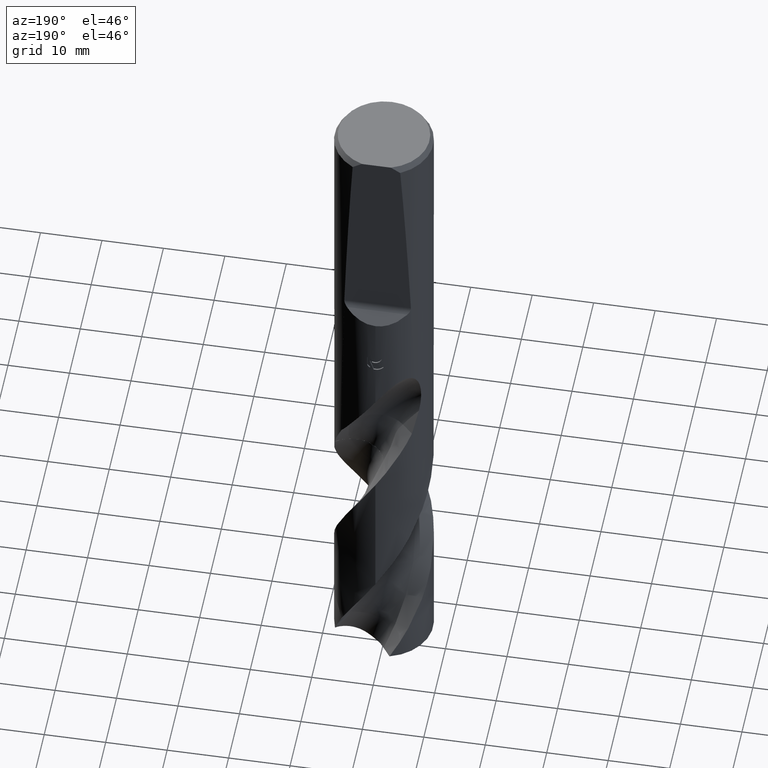
[diagram: clean part render]
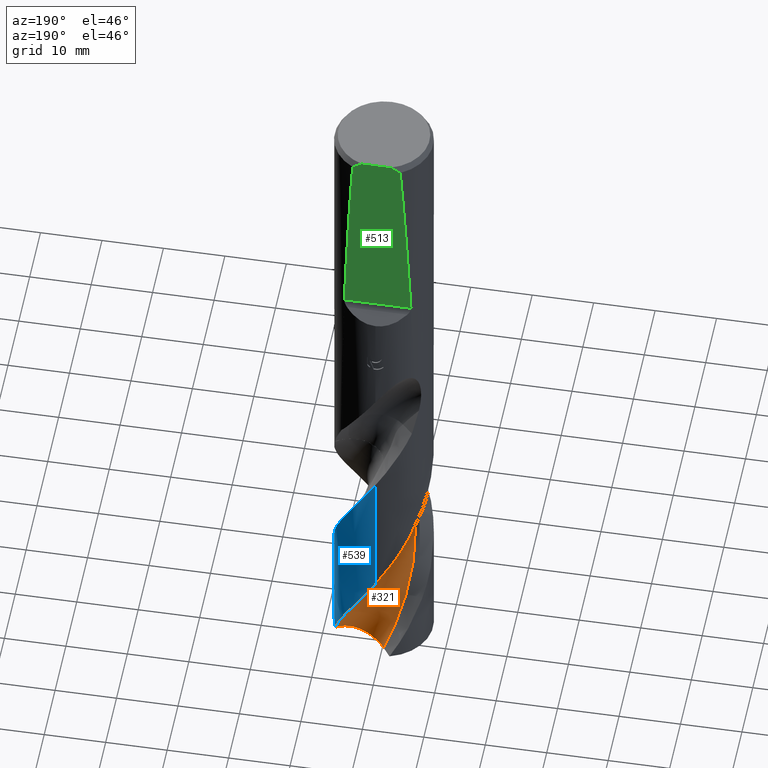
[diagram: same view with three faces highlighted in distinct colors, each labeled with its STEP entity id]
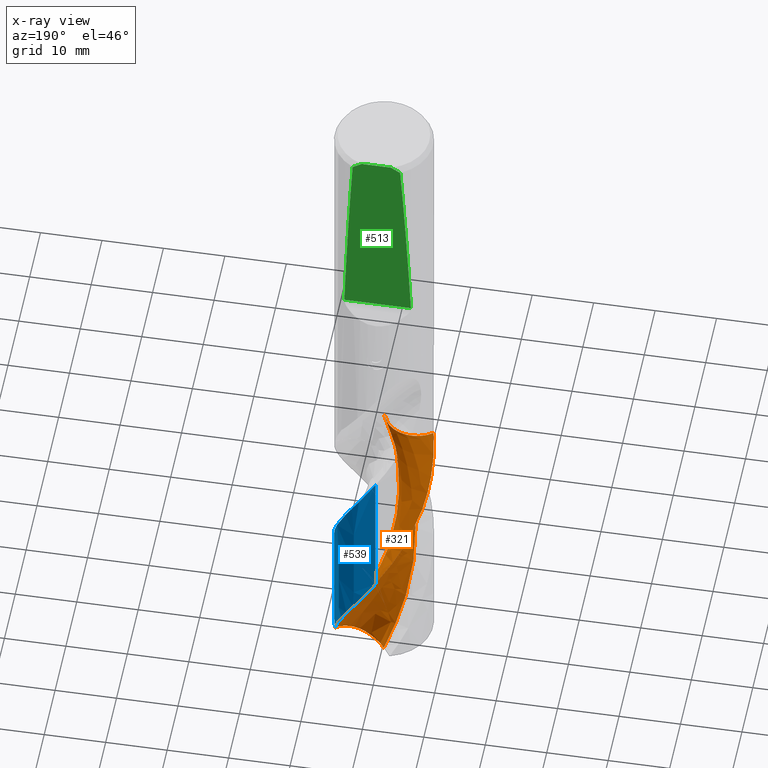
[diagram: x-ray of the same camera — body ghosted, the three highlighted faces saturated]
A machine part, auxiliary view with three faces highlighted in distinct colors.
The next image is the same camera in x-ray (body ghosted, the three faces saturated) — at least one of them is partly hidden behind the body in this view.
Their STEP definitions:

[orange] entity #321 — the highlighted face is a freeform B-spline surface patch.
#321=ADVANCED_FACE('',(#841),#842,.F.);
#359=EDGE_CURVE('',#637,#405,#884,.T.);
#363=EDGE_CURVE('',#405,#533,#888,.T.);
#405=VERTEX_POINT('',#935);
#533=VERTEX_POINT('',#1073);
#637=VERTEX_POINT('',#1186);
#641=VERTEX_POINT('',#1190);
#655=EDGE_CURVE('',#677,#641,#1204,.T.);
#677=VERTEX_POINT('',#1228);
#705=EDGE_CURVE('',#533,#677,#1260,.T.);
#745=VERTEX_POINT('',#1305);
#747=EDGE_CURVE('',#641,#745,#1307,.T.);
#761=EDGE_CURVE('',#745,#637,#1321,.T.);
#841=FACE_OUTER_BOUND('',#1461,.T.);
#842=B_SPLINE_SURFACE_WITH_KNOTS('',3,3,((#1462,#1463,#1464,#1465,#1466,#1467,#1468,#1469,#1470,#1471,#1472,#1473,#1474,#1475,#1476,#1477,#1478,#1479,#1480,#1481,#1482,#1483,#1484,#1485,#1486,#1487,#1488,#1489,#1490,#1491,#1492,#1493,#1494,#1495,#1496,#1497,#1498,#1499,#1500,#1501,#1502,#1503,#1504),(#1505,#1506,#1507,#1508,#1509,#1510,#1511,#1512,#1513,#1514,#1515,#1516,#1517,#1518,#1519,#1520,#1521,#1522,#1523,#1524,#1525,#1526,#1527,#1528,#1529,#1530,#1531,#1532,#1533,#1534,#1535,#1536,#1537,#1538,#1539,#1540,#1541,#1542,#1543,#1544,#1545,#1546,#1547),(#1548,#1549,#1550,#1551,#1552,#1553,#1554,#1555,#1556,#1557,#1558,#1559,#1560,#1561,#1562,#1563,#1564,#1565,#1566,#1567,#1568,#1569,#1570,#1571,#1572,#1573,#1574,#1575,#1576,#1577,#1578,#1579,#1580,#1581,#1582,#1583,#1584,#1585,#1586,#1587,#1588,#1589,#1590),(#1591,#1592,#1593,#1594,#1595,#1596,#1597,#1598,#1599,#1600,#1601,#1602,#1603,#1604,#1605,#1606,#1607,#1608,#1609,#1610,#1611,#1612,#1613,#1614,#1615,#1616,#1617,#1618,#1619,#1620,#1621,#1622,#1623,#1624,#1625,#1626,#1627,#1628,#1629,#1630,#1631,#1632,#1633),(#1634,#1635,#1636,#1637,#1638,#1639,#1640,#1641,#1642,#1643,#1644,#1645,#1646,#1647,#1648,#1649,#1650,#1651,#1652,#1653,#1654,#1655,#1656,#1657,#1658,#1659,#1660,#1661,#1662,#1663,#1664,#1665,#1666,#1667,#1668,#1669,#1670,#1671,#1672,#1673,#1674,#1675,#1676),(#1677,#1678,#1679,#1680,#1681,#1682,#1683,#1684,#1685,#1686,#1687,#1688,#1689,#1690,#1691,#1692,#1693,#1694,#1695,#1696,#1697,#1698,#1699,#1700,#1701,#1702,#1703,#1704,#1705,#1706,#1707,#1708,#1709,#1710,#1711,#1712,#1713,#1714,#1715,#1716,#1717,#1718,#1719),(#1720,#1721,#1722,#1723,#1724,#1725,#1726,#1727,#1728,#1729,#1730,#1731,#1732,#1733,#1734,#1735,#1736,#1737,#1738,#1739,#1740,#1741,#1742,#1743,#1744,#1745,#1746,#1747,#1748,#1749,#1750,#1751,#1752,#1753,#1754,#1755,#1756,#1757,#1758,#1759,#1760,#1761,#1762),(#1763,#1764,#1765,#1766,#1767,#1768,#1769,#1770,#1771,#1772,#1773,#1774,#1775,#1776,#1777,#1778,#1779,#1780,#1781,#1782,#1783,#1784,#1785,#1786,#1787,#1788,#1789,#1790,#1791,#1792,#1793,#1794,#1795,#1796,#1797,#1798,#1799,#1800,#1801,#1802,#1803,#1804,#1805),(#1806,#1807,#1808,#1809,#1810,#1811,#1812,#1813,#1814,#1815,#1816,#1817,#1818,#1819,#1820,#1821,#1822,#1823,#1824,#1825,#1826,#1827,#1828,#1829,#1830,#1831,#1832,#1833,#1834,#1835,#1836,#1837,#1838,#1839,#1840,#1841,#1842,#1843,#1844,#1845,#1846,#1847,#1848),(#1849,#1850,#1851,#1852,#1853,#1854,#1855,#1856,#1857,#1858,#1859,#1860,#1861,#1862,#1863,#1864,#1865,#1866,#1867,#1868,#1869,#1870,#1871,#1872,#1873,#1874,#1875,#1876,#1877,#1878,#1879,#1880,#1881,#1882,#1883,#1884,#1885,#1886,#1887,#1888,#1889,#1890,#1891),(#1892,#1893,#1894,#1895,#1896,#1897,#1898,#1899,#1900,#1901,#1902,#1903,#1904,#1905,#1906,#1907,#1908,#1909,#1910,#1911,#1912,#1913,#1914,#1915,#1916,#1917,#1918,#1919,#1920,#1921,#1922,#1923,#1924,#1925,#1926,#1927,#1928,#1929,#1930,#1931,#1932,#1933,#1934),(#1935,#1936,#1937,#1938,#1939,#1940,#1941,#1942,#1943,#1944,#1945,#1946,#1947,#1948,#1949,#1950,#1951,#1952,#1953,#1954,#1955,#1956,#1957,#1958,#1959,#1960,#1961,#1962,#1963,#1964,#1965,#1966,#1967,#1968,#1969,#1970,#1971,#1972,#1973,#1974,#1975,#1976,#1977)),.UNSPECIFIED.,.F.,.F.,.F.,(4,1,1,1,1,1,1,1,1,4),(4,1,2,2,2,2,2,2,1,2,2,2,2,2,2,2,2,2,2,2,1,2,4),(-8.28795270144725E-017,0.392700612629877,0.785401225259755,1.17810183788963,1.57080245051951,1.96350306314939,2.35620367577927,2.74890428840914,2.94525459472408,3.14160490103902),(0.0,1.06461880689697,2.12923761379393,3.1938564206909,4.25847522758786,6.38771284138179,8.51695045517572,10.6461880689697,12.7754256827636,17.0339009103514,21.2923761379393,25.5508513655272,29.809326593115,34.0678018207029,38.3262770482907,42.5847522758786,46.8432275034665,51.1017027310543,55.3601779586422,59.61865318623,63.8771284138179,66.0063660276118,68.1356036414058),.UNSPECIFIED.);
#884=B_SPLINE_CURVE_WITH_KNOTS('',3,(#2653,#2654,#2655,#2656,#2657,#2658,#2659,#2660,#2661,#2662,#2663,#2664,#2665,#2666,#2667,#2668,#2669,#2670,#2671,#2672),.UNSPECIFIED.,.F.,.F.,(4,2,2,2,2,2,2,2,2,4),(-16.8006218485099,-15.6891768468068,-14.5775007599719,-12.4929966616332,-10.408755172207,-8.32572176035212,-6.24413518085139,-4.16337960795178,-2.08233106861258,-0.0),.UNSPECIFIED.);
#888=B_SPLINE_CURVE_WITH_KNOTS('',3,(#2681,#2682,#2683,#2684,#2685,#2686,#2687,#2688,#2689,#2690,#2691,#2692,#2693,#2694,#2695,#2696,#2697,#2698,#2699,#2700,#2701,#2702,#2703,#2704,#2705,#2706,#2707,#2708,#2709,#2710,#2711,#2712,#2713,#2714,#2715,#2716,#2717,#2718,#2719,#2720,#2721,#2722,#2723),.UNSPECIFIED.,.F.,.F.,(4,1,2,2,2,2,2,2,1,2,2,2,2,2,2,2,2,2,2,2,1,2,4),(0.0,1.06461880689697,2.12923761379393,3.1938564206909,4.25847522758786,6.38771284138179,8.51695045517572,10.6461880689697,12.7754256827636,17.0339009103514,21.2923761379393,25.5508513655272,29.809326593115,34.0678018207029,38.3262770482907,42.5847522758786,46.8432275034665,51.1017027310543,55.3601779586422,59.61865318623,63.8771284138179,66.0063660276118,68.1356036414058),.UNSPECIFIED.);
#935=CARTESIAN_POINT('',(0.841475625402543,-4.95653405970587,-69.805));
#1073=CARTESIAN_POINT('',(-0.825038306277627,4.97440358064605,-113.164731597398));
#1186=CARTESIAN_POINT('',(-7.65315511599825,-2.32972465532846,-69.805));
#1190=CARTESIAN_POINT('',(7.46189764271831,2.8844555066069,-112.08823812587));
#1204=B_SPLINE_CURVE_WITH_KNOTS('',3,(#5452,#5453,#5454,#5455,#5456,#5457,#5458,#5459,#5460,#5461,#5462,#5463,#5464,#5465,#5466,#5467,#5468,#5469,#5470,#5471),.UNSPECIFIED.,.F.,.F.,(4,2,2,2,2,2,2,2,2,4),(0.0,3.10660166891477,5.2340125833398,9.00923385399726,13.5346876069055,18.5787250748083,24.2399293318321,30.5895546604821,35.7181253172821,40.8645525331456),.UNSPECIFIED.);
#1228=CARTESIAN_POINT('',(4.91318924837054E-012,3.49123471205397,-113.729294483975));
#1260=B_SPLINE_CURVE_WITH_KNOTS('',3,(#7004,#7005,#7006,#7007,#7008,#7009,#7010,#7011,#7012,#7013,#7014,#7015,#7016,#7017,#7018,#7019,#7020,#7021,#7022,#7023),.UNSPECIFIED.,.F.,.F.,(4,2,2,2,2,2,2,2,2,4),(0.0,3.10660166891477,5.2340125833398,9.00923385399726,13.5346876069055,18.5787250748083,24.2399293318321,30.5895546604821,35.7181253172821,40.8645525331456),.UNSPECIFIED.);
#1305=CARTESIAN_POINT('',(1.89754420758428E-011,7.99996084194975,-95.5289885932862));
#1307=B_SPLINE_CURVE_WITH_KNOTS('',3,(#7302,#7303,#7304,#7305,#7306,#7307,#7308,#7309,#7310,#7311,#7312,#7313,#7314,#7315,#7316,#7317,#7318,#7319,#7320,#7321,#7322,#7323,#7324,#7325,#7326,#7327,#7328,#7329,#7330,#7331,#7332,#7333,#7334,#7335,#7336,#7337,#7338,#7339,#7340,#7341,#7342,#7343,#7344,#7345,#7346,#7347,#7348,#7349,#7350,#7351,#7352,#7353,#7354,#7355,#7356,#7357,#7358,#7359,#7360,#7361,#7362,#7363),.UNSPECIFIED.,.F.,.F.,(4,2,2,2,2,2,2,2,2,2,2,2,2,2,2,2,2,2,2,2,2,2,2,2,2,2,2,2,2,2,4),(0.0,4.03119896320147,4.51299643171253,6.34896058069356,7.569833306916,8.73994153396919,10.6008235458961,11.5670182466299,12.4807597280399,14.4082638178036,15.3786518693126,16.4731307652434,18.2962473498897,20.1690397273523,22.0952049830949,24.0103927203589,25.766254646335,27.2014697096268,27.3010410731199,30.0331241361555,32.2658099796229,34.3488900971072,35.2588120125713,38.6814882075598,38.832342711728,41.1686782478763,42.1379179458796,42.9852840426844,45.9588926378141,47.4431304472618,48.9243446498629),.UNSPECIFIED.);
#1321=B_SPLINE_CURVE_WITH_KNOTS('',3,(#7406,#7407,#7408,#7409,#7410,#7411,#7412,#7413,#7414,#7415,#7416,#7417,#7418,#7419,#7420,#7421,#7422,#7423,#7424,#7425,#7426,#7427,#7428,#7429,#7430,#7431,#7432,#7433,#7434,#7435,#7436,#7437,#7438,#7439,#7440,#7441,#7442,#7443,#7444,#7445,#7446,#7447,#7448,#7449,#7450,#7451,#7452,#7453,#7454,#7455,#7456,#7457,#7458,#7459,#7460,#7461,#7462,#7463,#7464,#7465,#7466,#7467),.UNSPECIFIED.,.F.,.F.,(4,2,2,2,2,2,2,2,2,2,2,2,2,2,2,2,2,2,2,2,2,2,2,2,2,2,2,2,2,2,4),(0.0,4.03119896320147,4.51299643171253,6.34896058069356,7.569833306916,8.73994153396919,10.6008235458961,11.5670182466299,12.4807597280399,14.4082638178036,15.3786518693126,16.4731307652434,18.2962473498897,20.1690397273523,22.0952049830949,24.0103927203589,25.766254646335,27.2014697096268,27.3010410731199,30.0331241361555,32.2658099796229,34.3488900971072,35.2588120125713,38.6814882075598,38.832342711728,41.1686782478763,42.1379179458796,42.9852840426844,45.9588926378141,47.4431304472618,48.9243446498629),.UNSPECIFIED.);
#1461=EDGE_LOOP('',(#7600,#7601,#7602,#7603,#7604,#7605));
#1462=CARTESIAN_POINT('',(-3.77123616390052,-11.5045694939005,-62.101));
#1463=CARTESIAN_POINT('',(-3.99494750786871,-11.491550967877,-62.3761964294817));
#1464=CARTESIAN_POINT('',(-4.44535716074062,-11.4368890825476,-62.928708894119));
#1465=CARTESIAN_POINT('',(-4.89746910289602,-11.3144343687984,-63.4836356023279));
#1466=CARTESIAN_POINT('',(-5.3463058039127,-11.1523663599811,-64.0378960476902));
#1467=CARTESIAN_POINT('',(-5.5691709377011,-11.0495228777207,-64.3146059860287));
#1468=CARTESIAN_POINT('',(-6.00534785201262,-10.7952059434669,-64.8646200871224));
#1469=CARTESIAN_POINT('',(-6.21895591243397,-10.6599028421596,-65.1391112000673));
#1470=CARTESIAN_POINT('',(-6.84495326534287,-10.2302383777823,-65.9608312941883));
#1471=CARTESIAN_POINT('',(-7.24490090355261,-9.93366322254029,-66.5088962825313));
#1472=CARTESIAN_POINT('',(-8.017782623465,-9.32995362118867,-67.6126019443398));
#1473=CARTESIAN_POINT('',(-8.38670653037693,-9.00639853815631,-68.1647858744946));
#1474=CARTESIAN_POINT('',(-9.08347870649519,-8.31819325422223,-69.2698218861797));
#1475=CARTESIAN_POINT('',(-9.41004161470983,-7.95002214398554,-69.8215558486082));
#1476=CARTESIAN_POINT('',(-10.0116248688456,-7.16804894421748,-70.9219077035381));
#1477=CARTESIAN_POINT('',(-10.8464192765121,-5.94583325632293,-72.5738213763963));
#1478=CARTESIAN_POINT('',(-11.4574494267158,-4.59224251369927,-74.2286793966339));
#1479=CARTESIAN_POINT('',(-12.0394976566691,-2.7109191361218,-76.4328668057407));
#1480=CARTESIAN_POINT('',(-12.2207461411156,-1.73766549243578,-77.535053441979));
#1481=CARTESIAN_POINT('',(-12.3388106957972,0.228344356696731,-79.7395554585927));
#1482=CARTESIAN_POINT('',(-12.283393278689,1.21676873646031,-80.8417797230621));
#1483=CARTESIAN_POINT('',(-11.9309413234659,3.1544257264903,-83.0462084387753));
#1484=CARTESIAN_POINT('',(-11.642262637585,4.10137097098775,-84.1484298127377));
#1485=CARTESIAN_POINT('',(-10.839371113673,5.89975404537362,-86.352880347802));
#1486=CARTESIAN_POINT('',(-10.3338892238225,6.75095033797079,-87.4551037160809));
#1487=CARTESIAN_POINT('',(-9.12656642906275,8.30697365282369,-89.6595442821493));
#1488=CARTESIAN_POINT('',(-8.43324330614743,9.01363821266433,-90.7617686793985));
#1489=CARTESIAN_POINT('',(-6.89061118369361,10.238074514454,-92.9662124436669));
#1490=CARTESIAN_POINT('',(-6.0491856981925,10.7596777119956,-94.0684331341183));
#1491=CARTESIAN_POINT('',(-4.25977635161187,11.58239695737,-96.2728857838334));
#1492=CARTESIAN_POINT('',(-3.31850911215086,11.889082908257,-97.3751072697632));
#1493=CARTESIAN_POINT('',(-1.3848678660048,12.2629852705756,-99.5795416535595));
#1494=CARTESIAN_POINT('',(-0.397677830986936,12.3371882956942,-100.681766656477));
#1495=CARTESIAN_POINT('',(1.56943527325388,12.2407419123529,-102.886229384219));
#1496=CARTESIAN_POINT('',(2.54595380209566,12.0781678511329,-103.988435202591));
#1497=CARTESIAN_POINT('',(4.4338307162187,11.5171237408412,-106.19285235389));
#1498=CARTESIAN_POINT('',(5.34386265749228,11.1270478568185,-107.295173965047));
#1499=CARTESIAN_POINT('',(7.04395423935923,10.1322684722062,-109.499751199625));
#1500=CARTESIAN_POINT('',(8.23044920533452,9.24056158959566,-111.152496528053));
#1501=CARTESIAN_POINT('',(9.23026200083425,8.14993077033565,-112.804947176397));
#1502=CARTESIAN_POINT('',(9.84785716001524,7.38111209319054,-113.906703194994));
#1503=CARTESIAN_POINT('',(10.1365876112376,6.98504520097409,-114.457006773655));
#1504=CARTESIAN_POINT('',(10.4065851501006,6.57998542295477,-115.007939303796));
#1505=CARTESIAN_POINT('',(-4.26487008743984,-11.0108922508249,-62.1010000000006));
#1506=CARTESIAN_POINT('',(-4.48854231835134,-10.9978346199963,-62.3761954207119));
#1507=CARTESIAN_POINT('',(-4.93515689673654,-10.9393357322616,-62.9289116032268));
#1508=CARTESIAN_POINT('',(-5.37574073142824,-10.8057473806653,-63.4843196492008));
#1509=CARTESIAN_POINT('',(-5.80873311276064,-10.6292350520419,-64.0389998213953));
#1510=CARTESIAN_POINT('',(-6.02124614083542,-10.5172626016379,-64.3158766959041));
#1511=CARTESIAN_POINT('',(-6.43126905357798,-10.241794415554,-64.8657432318517));
#1512=CARTESIAN_POINT('',(-6.63138275129101,-10.0963596056384,-65.1400848036073));
#1513=CARTESIAN_POINT('',(-7.21572318877099,-9.63773063552185,-65.9611148431503));
#1514=CARTESIAN_POINT('',(-7.58964488044599,-9.32599131797155,-66.5087577239503));
#1515=CARTESIAN_POINT('',(-8.31480685583063,-8.69758510550082,-67.6126704374082));
#1516=CARTESIAN_POINT('',(-8.65924812983008,-8.36309760201334,-68.1650031065412));
#1517=CARTESIAN_POINT('',(-9.30572358860413,-7.65583254206082,-69.2704298857184));
#1518=CARTESIAN_POINT('',(-9.60582261017986,-7.27929372060111,-69.8222504755228));
#1519=CARTESIAN_POINT('',(-10.1519714076767,-6.48357122519126,-70.9223424349183));
#1520=CARTESIAN_POINT('',(-10.9037073370366,-5.24614401277468,-72.5740586767563));
#1521=CARTESIAN_POINT('',(-11.431144788699,-3.89235183760404,-74.2291285667418));
#1522=CARTESIAN_POINT('',(-11.9017698552076,-2.02420990670028,-76.4332801964786));
#1523=CARTESIAN_POINT('',(-12.0288851564687,-1.0640697706056,-77.5354618453482));
#1524=CARTESIAN_POINT('',(-12.0418031205823,0.862637595824631,-79.7399717835936));
#1525=CARTESIAN_POINT('',(-11.9369073207828,1.8254454841165,-80.8421962906035));
#1526=CARTESIAN_POINT('',(-11.4916924638396,3.6999529423217,-83.0466227618544));
#1527=CARTESIAN_POINT('',(-11.1610477118437,4.61026434233242,-84.1488440304038));
#1528=CARTESIAN_POINT('',(-10.2830552242972,6.32525663050882,-86.3532952256041));
#1529=CARTESIAN_POINT('',(-9.74551461043097,7.13089208264973,-87.455518729441));
#1530=CARTESIAN_POINT('',(-8.48506110156758,8.58806241131963,-89.6599587674007));
#1531=CARTESIAN_POINT('',(-7.77142499913324,9.2428491797968,-90.7621833708468));
#1532=CARTESIAN_POINT('',(-6.20067755335858,10.3586244591,-92.9666270030881));
#1533=CARTESIAN_POINT('',(-5.35185330009951,10.825007809299,-94.0688474546036));
#1534=CARTESIAN_POINT('',(-3.56096194824877,11.5355087574434,-96.2733011605363));
#1535=CARTESIAN_POINT('',(-2.62563186733734,11.7868033733609,-97.3755221092021));
#1536=CARTESIAN_POINT('',(-0.717219648479872,12.0513596240753,-99.5799554367808));
#1537=CARTESIAN_POINT('',(0.251039858617055,12.0731692550687,-100.682181273772));
#1538=CARTESIAN_POINT('',(2.16765289062571,11.8764948223027,-102.886646906112));
#1539=CARTESIAN_POINT('',(3.11332836741053,11.6675277692204,-103.988850512202));
#1540=CARTESIAN_POINT('',(4.92834939084931,11.0211499275026,-106.193258685651));
#1541=CARTESIAN_POINT('',(5.79738767543361,10.5933213296185,-107.295588792645));
#1542=CARTESIAN_POINT('',(7.40627998666433,9.53287828531011,-109.500187415629));
#1543=CARTESIAN_POINT('',(8.51978926277477,8.60094068560614,-111.152863323039));
#1544=CARTESIAN_POINT('',(9.43960811478686,7.48331432325579,-112.80536000018));
#1545=CARTESIAN_POINT('',(10.0021899840828,6.69965451856844,-113.907153646528));
#1546=CARTESIAN_POINT('',(10.264392218146,6.29822642955343,-114.45739117295));
#1547=CARTESIAN_POINT('',(10.508926364945,5.88939308323753,-115.008347798055));
#1548=CARTESIAN_POINT('',(-5.05561280735149,-9.82744572309669,-62.1009999999994));
#1549=CARTESIAN_POINT('',(-5.27919128993261,-9.81432544384477,-62.3761937643355));
#1550=CARTESIAN_POINT('',(-5.71669144793464,-9.74966336545687,-62.9292449912033));
#1551=CARTESIAN_POINT('',(-6.12979663965816,-9.59839653589858,-63.4854446881572));
#1552=CARTESIAN_POINT('',(-6.52536330382369,-9.39930202253191,-64.0408151689402));
#1553=CARTESIAN_POINT('',(-6.71354635511126,-9.27319194905881,-64.3179665992792));
#1554=CARTESIAN_POINT('',(-7.06286104051042,-8.96583076855858,-64.8675904449036));
#1555=CARTESIAN_POINT('',(-7.23196261613471,-8.80550316457658,-65.1416860684445));
#1556=CARTESIAN_POINT('',(-7.72148835253499,-8.30552329039235,-65.9615811855309));
#1557=CARTESIAN_POINT('',(-8.03733895903119,-7.97381155012014,-66.508529845011));
#1558=CARTESIAN_POINT('',(-8.65726060393128,-7.31499882649334,-67.6127830812404));
#1559=CARTESIAN_POINT('',(-8.94839951802824,-6.9683869510327,-68.1653603795497));
#1560=CARTESIAN_POINT('',(-9.48672338452412,-6.24301136698542,-69.2714298517056));
#1561=CARTESIAN_POINT('',(-9.73057826520974,-5.86026425621758,-69.8233929341162));
#1562=CARTESIAN_POINT('',(-10.16041385375,-5.05909339255951,-70.9230574053875));
#1563=CARTESIAN_POINT('',(-10.7400187919576,-3.82427884771883,-72.5744489702713));
#1564=CARTESIAN_POINT('',(-11.1002258166419,-2.50332553592266,-74.229867349514));
#1565=CARTESIAN_POINT('',(-11.3532934240459,-0.705849895967843,-76.4339600472599));
#1566=CARTESIAN_POINT('',(-11.3773797302126,0.206542005162141,-77.5361335111407));
#1567=CARTESIAN_POINT('',(-11.1956781252823,2.01284803842277,-79.740656529168));
#1568=CARTESIAN_POINT('',(-11.0020329484779,2.90475800272644,-80.842881457682));
#1569=CARTESIAN_POINT('',(-10.3964437515919,4.61610461193519,-83.0473041410543));
#1570=CARTESIAN_POINT('',(-9.99645236614701,5.43647533241376,-84.1495251161461));
#1571=CARTESIAN_POINT('',(-9.00145104609559,6.95485639811893,-86.353977733686));
#1572=CARTESIAN_POINT('',(-8.41792431961718,7.65664071198724,-87.4562014370822));
#1573=CARTESIAN_POINT('',(-7.09054195942304,8.8950185953273,-89.6606403166551));
#1574=CARTESIAN_POINT('',(-6.35691831942105,9.43799386201692,-90.7628653687835));
#1575=CARTESIAN_POINT('',(-4.77316254989922,10.3253124826218,-92.9673088545749));
#1576=CARTESIAN_POINT('',(-3.93150273552848,10.6783372541697,-94.069529203132));
#1577=CARTESIAN_POINT('',(-2.18227313524488,11.163859302301,-96.2739839955362));
#1578=CARTESIAN_POINT('',(-1.28084193827486,11.3067555638843,-97.3762045461284));
#1579=CARTESIAN_POINT('',(0.533639957201202,11.3626985014925,-99.5806358160454));
#1580=CARTESIAN_POINT('',(1.44321146972111,11.287271239841,-100.682863038072));
#1581=CARTESIAN_POINT('',(3.21898859133957,10.9102649879961,-102.887333741593));
#1582=CARTESIAN_POINT('',(4.08454224759721,10.6207966586755,-103.989533682625));
#1583=CARTESIAN_POINT('',(5.71994797258535,9.8327592672446,-106.193926849498));
#1584=CARTESIAN_POINT('',(6.49200340649743,9.34574278357492,-107.296271091563));
#1585=CARTESIAN_POINT('',(7.89242356911374,8.19026679647842,-109.50090480816));
#1586=CARTESIAN_POINT('',(8.84399385339957,7.20690837163384,-111.153466490332));
#1587=CARTESIAN_POINT('',(9.59312350460926,6.0671128844067,-112.806039064009));
#1588=CARTESIAN_POINT('',(10.0398000653775,5.27565385707402,-113.907894391334));
#1589=CARTESIAN_POINT('',(10.2468250932861,4.87405490136193,-114.45802311849));
#1590=CARTESIAN_POINT('',(10.4389426228881,4.46780187703144,-115.00901963899));
#1591=CARTESIAN_POINT('',(-5.47216991103902,-7.73334034922096,-62.1009999999997));
#1592=CARTESIAN_POINT('',(-5.69558248941374,-7.720187073969,-62.3761927298582));
#1593=CARTESIAN_POINT('',(-6.11691262017117,-7.65221541762487,-62.9294531104426));
#1594=CARTESIAN_POINT('',(-6.48178643473874,-7.49222107906944,-63.4861470031429));
#1595=CARTESIAN_POINT('',(-6.81252099398969,-7.28331267053013,-64.0419484108001));
#1596=CARTESIAN_POINT('',(-6.95886900585907,-7.15157495376895,-64.3192712380578));
#1597=CARTESIAN_POINT('',(-7.20573749419089,-6.83486220153539,-64.8687435785989));
#1598=CARTESIAN_POINT('',(-7.32330867972197,-6.6716971175924,-65.1426856688988));
#1599=CARTESIAN_POINT('',(-7.65768897573489,-6.16883733491747,-65.9618723036691));
#1600=CARTESIAN_POINT('',(-7.881591864147,-5.84278081989119,-66.5083875921569));
#1601=CARTESIAN_POINT('',(-8.33820251615733,-5.20224014353903,-67.6128533977741));
#1602=CARTESIAN_POINT('',(-8.54850790040808,-4.86942298079694,-68.165583410485));
#1603=CARTESIAN_POINT('',(-8.92654467484325,-4.18103159824965,-69.2720540867105));
#1604=CARTESIAN_POINT('',(-9.08888507251999,-3.82196708570385,-69.8241061084403));
#1605=CARTESIAN_POINT('',(-9.35439048900333,-3.08001530366039,-70.9235037441463));
#1606=CARTESIAN_POINT('',(-9.6969330668774,-1.9476340817816,-72.5746926072225));
#1607=CARTESIAN_POINT('',(-9.84422114674734,-0.768191952356239,-74.2303285121263));
#1608=CARTESIAN_POINT('',(-9.83633455120236,0.806455658687112,-76.4343844765676));
#1609=CARTESIAN_POINT('',(-9.74503961847173,1.59352769223453,-77.5365528150115));
#1610=CARTESIAN_POINT('',(-9.3627246558964,3.12124373096278,-79.7410839745848));
#1611=CARTESIAN_POINT('',(-9.08677797379137,3.86394718352012,-80.8433090808055));
#1612=CARTESIAN_POINT('',(-8.35258321606786,5.25710048267447,-83.0477295940035));
#1613=CARTESIAN_POINT('',(-7.90811268579218,5.91301091967752,-84.1499503473538));
#1614=CARTESIAN_POINT('',(-6.86380992164523,7.0917326324984,-86.3544037354714));
#1615=CARTESIAN_POINT('',(-6.27616543181675,7.62318783748827,-87.4566275655627));
#1616=CARTESIAN_POINT('',(-4.98162231065278,8.51991326892983,-89.6610658350781));
#1617=CARTESIAN_POINT('',(-4.28448285405419,8.89645137858474,-90.7632910918336));
#1618=CARTESIAN_POINT('',(-2.81384439150664,9.45967674615702,-92.967734524068));
#1619=CARTESIAN_POINT('',(-2.04718773896395,9.65970672192833,-94.0699545105951));
#1620=CARTESIAN_POINT('',(-0.484848003879063,9.85733919846842,-96.274410538849));
#1621=CARTESIAN_POINT('',(0.307375271562407,9.86946218126459,-97.3766306404135));
#1622=CARTESIAN_POINT('',(1.87192114505961,9.69020170556228,-99.5810604693298));
#1623=CARTESIAN_POINT('',(2.6443359429739,9.51370058911974,-100.683288648927));
#1624=CARTESIAN_POINT('',(4.12140412312529,8.96761346191311,-102.88776248872));
#1625=CARTESIAN_POINT('',(4.82970224090086,8.61256975161349,-103.989960074486));
#1626=CARTESIAN_POINT('',(6.13485332228141,7.73131024566444,-106.194344037494));
#1627=CARTESIAN_POINT('',(6.73852000449519,7.21793642112235,-107.296696998399));
#1628=CARTESIAN_POINT('',(7.7954577706573,6.05042481997509,-109.50135266849));
#1629=CARTESIAN_POINT('',(8.49307317285198,5.08876198494511,-111.153843070702));
#1630=CARTESIAN_POINT('',(8.99291263861119,4.01622601579533,-112.806462919615));
#1631=CARTESIAN_POINT('',(9.27447508798909,3.28049331803776,-113.908356861201));
#1632=CARTESIAN_POINT('',(9.4049300475653,2.91033225396486,-114.458417738626));
#1633=CARTESIAN_POINT('',(9.52588284385044,2.53774519352797,-115.009439040383));
#1634=CARTESIAN_POINT('',(-5.05563585511007,-5.63923039084382,-62.1010000000003));
#1635=CARTESIAN_POINT('',(-5.2788825321545,-5.6261101125942,-62.376193306629));
#1636=CARTESIAN_POINT('',(-5.6840068997026,-5.56126887300239,-62.9293375350973));
#1637=CARTESIAN_POINT('',(-6.0009815639122,-5.41166855444233,-63.4857569861843));
#1638=CARTESIAN_POINT('',(-6.26806453301341,-5.21850312260653,-64.0413190895198));
#1639=CARTESIAN_POINT('',(-6.37360900407195,-5.09757549284462,-64.3185467346714));
#1640=CARTESIAN_POINT('',(-6.52225036939217,-4.81142773706141,-64.868103209265));
#1641=CARTESIAN_POINT('',(-6.59112734437131,-4.66536127617716,-65.1421305627189));
#1642=CARTESIAN_POINT('',(-6.78106854434179,-4.21921325724471,-65.9617106350806));
#1643=CARTESIAN_POINT('',(-6.92218724149529,-3.93356843060505,-66.5084665934615));
#1644=CARTESIAN_POINT('',(-7.23491072854146,-3.37240558640245,-67.6128143448076));
#1645=CARTESIAN_POINT('',(-7.37581475307147,-3.08326683164918,-68.1654595654706));
#1646=CARTESIAN_POINT('',(-7.61991932339225,-2.49038345174269,-69.2717074202468));
#1647=CARTESIAN_POINT('',(-7.71601328259978,-2.18439297315113,-69.823710062256));
#1648=CARTESIAN_POINT('',(-7.85235942748305,-1.56003945932403,-70.9232558789063));
#1649=CARTESIAN_POINT('',(-8.01508466291266,-0.613014517394633,-72.5745573111376));
#1650=CARTESIAN_POINT('',(-8.01981566212182,0.354207771262958,-74.2300724058766));
#1651=CARTESIAN_POINT('',(-7.85611184604483,1.62312598169696,-76.4341487878011));
#1652=CARTESIAN_POINT('',(-7.70617660519438,2.25026296793564,-77.5363199743702));
#1653=CARTESIAN_POINT('',(-7.2451313049292,3.44382394124988,-79.7408465906621));
#1654=CARTESIAN_POINT('',(-6.950247015673,4.01718309291629,-80.8430716019676));
#1655=CARTESIAN_POINT('',(-6.21900407234904,5.06714885673212,-83.0474933348265));
#1656=CARTESIAN_POINT('',(-5.79637659126129,5.55409639990321,-84.1497141894563));
#1657=CARTESIAN_POINT('',(-4.8365077293339,6.40014708720533,-86.3541671788706));
#1658=CARTESIAN_POINT('',(-4.3102412788435,6.7726629832598,-87.4563909717199));
#1659=CARTESIAN_POINT('',(-3.17678279378308,7.36630996543085,-89.6608294845622));
#1660=CARTESIAN_POINT('',(-2.57704328011157,7.60304219754526,-90.7630546901335));
#1661=CARTESIAN_POINT('',(-1.33493706955433,7.91013292273664,-92.9674981226704));
#1662=CARTESIAN_POINT('',(-0.696123018668322,7.99751677488921,-94.0697181856972));
#1663=CARTESIAN_POINT('',(0.583382115172707,8.00069399639422,-96.2741738061705));
#1664=CARTESIAN_POINT('',(1.22466558523442,7.93379050749687,-97.376394120363));
#1665=CARTESIAN_POINT('',(2.46829201155278,7.63287724127147,-99.5808245444597));
#1666=CARTESIAN_POINT('',(3.0753111870488,7.41548390341079,-100.683052133477));
#1667=CARTESIAN_POINT('',(4.21170381023177,6.82749783748949,-102.887524554258));
#1668=CARTESIAN_POINT('',(4.74962214703327,6.47204969330825,-103.989723205984));
#1669=CARTESIAN_POINT('',(5.71398315507311,5.63104769145723,-106.194112441499));
#1670=CARTESIAN_POINT('',(6.15199250613753,5.15776269377575,-107.296460443222));
#1671=CARTESIAN_POINT('',(6.8869882394247,4.11057702285981,-109.501103995274));
#1672=CARTESIAN_POINT('',(7.35828257529289,3.26614306309095,-111.153633983081));
#1673=CARTESIAN_POINT('',(7.65354731610607,2.35114621740613,-112.806227492615));
#1674=CARTESIAN_POINT('',(7.80388993964863,1.73008455957429,-113.908100085822));
#1675=CARTESIAN_POINT('',(7.87563416786647,1.41827053087743,-114.458198631358));
#1676=CARTESIAN_POINT('',(7.94372283733779,1.10402039529653,-115.009206134556));
#1677=CARTESIAN_POINT('',(-3.8694246617525,-3.8639275597005,-62.1010000000004));
#1678=CARTESIAN_POINT('',(-4.09253069571978,-3.85090124779878,-62.3761953993129));
#1679=CARTESIAN_POINT('',(-4.4838807637547,-3.79515384182052,-62.9289158622476));
#1680=CARTESIAN_POINT('',(-4.76058077872572,-3.67348665504453,-63.4843340185136));
#1681=CARTESIAN_POINT('',(-4.97488311441738,-3.51922434070778,-64.0390230100672));
#1682=CARTESIAN_POINT('',(-5.04686756659254,-3.42389876401685,-64.3159033893159));
#1683=CARTESIAN_POINT('',(-5.11645518469141,-3.2035793081539,-64.8657668278015));
#1684=CARTESIAN_POINT('',(-5.14688744254168,-3.09194442897722,-65.1401052579421));
#1685=CARTESIAN_POINT('',(-5.22508559265443,-2.75346594745419,-65.9611207975196));
#1686=CARTESIAN_POINT('',(-5.30518688212456,-2.53683687781265,-66.5087548122764));
#1687=CARTESIAN_POINT('',(-5.51535269701628,-2.10407304372067,-67.6126718771668));
#1688=CARTESIAN_POINT('',(-5.60885337384102,-1.88184666703406,-68.1650076726776));
#1689=CARTESIAN_POINT('',(-5.76577070379111,-1.42845477459251,-69.2704426557921));
#1690=CARTESIAN_POINT('',(-5.82097176826464,-1.19684965939404,-69.8222650724927));
#1691=CARTESIAN_POINT('',(-5.8829930630398,-0.730570176181075,-70.9223515631627));
#1692=CARTESIAN_POINT('',(-5.95052169639481,-0.023605456442682,-72.5740636595231));
#1693=CARTESIAN_POINT('',(-5.90476072573312,0.692997135215384,-74.229138030051));
#1694=CARTESIAN_POINT('',(-5.71409855644131,1.61982946382734,-76.4332888535825));
#1695=CARTESIAN_POINT('',(-5.57119147604724,2.0767650746988,-77.5354704555276));
#1696=CARTESIAN_POINT('',(-5.16528496002562,2.93147837412841,-79.7399804990546));
#1697=CARTESIAN_POINT('',(-4.91771009318755,3.34113674362081,-80.8422050863545));
#1698=CARTESIAN_POINT('',(-4.32052685913269,4.07516839943252,-83.0466314211957));
#1699=CARTESIAN_POINT('',(-3.98273924602613,4.4143736563635,-84.1488526891415));
#1700=CARTESIAN_POINT('',(-3.22818521421215,4.9853882219595,-86.353303984243));
#1701=CARTESIAN_POINT('',(-2.8194482666772,5.23455183963153,-87.4555274868494));
#1702=CARTESIAN_POINT('',(-1.9507960078163,5.60983568732813,-89.659967435851));
#1703=CARTESIAN_POINT('',(-1.49454380617006,5.75467768215783,-90.7621920599642));
#1704=CARTESIAN_POINT('',(-0.561592539588652,5.9125868037544,-92.9666357346178));
#1705=CARTESIAN_POINT('',(-0.0839974977577666,5.94482273318765,-94.0688563286342));
#1706=CARTESIAN_POINT('',(0.859787601941341,5.87658325218955,-96.2733097165498));
#1707=CARTESIAN_POINT('',(1.33137879543897,5.79443129984317,-97.3755308735889));
#1708=CARTESIAN_POINT('',(2.23195979707233,5.50393649547603,-99.5799640798344));
#1709=CARTESIAN_POINT('',(2.67052467433979,5.31205808381762,-100.682189864961));
#1710=CARTESIAN_POINT('',(3.47614018656903,4.81573385342821,-102.886655796247));
#1711=CARTESIAN_POINT('',(3.85649350109197,4.52511384696848,-103.98885921445));
#1712=CARTESIAN_POINT('',(4.52141165895905,3.85171992042386,-106.193267244192));
#1713=CARTESIAN_POINT('',(4.8217150541027,3.47886669149017,-107.295597521658));
#1714=CARTESIAN_POINT('',(5.30532233003243,2.6660500189218,-109.500196565085));
#1715=CARTESIAN_POINT('',(5.61238497226856,2.01653089246412,-111.152871033222));
#1716=CARTESIAN_POINT('',(5.7789353253042,1.32536877894721,-112.805368671599));
#1717=CARTESIAN_POINT('',(5.85192961155916,0.86046504396746,-113.907163110533));
#1718=CARTESIAN_POINT('',(5.89176068871073,0.62502437671511,-114.457399152571));
#1719=CARTESIAN_POINT('',(5.93333397588068,0.384900766054461,-115.008356379588));
#1720=CARTESIAN_POINT('',(-2.09412762204004,-2.67770769883472,-62.101));
#1721=CARTESIAN_POINT('',(-2.31713968411079,-2.66482203518478,-62.3761986981667));
#1722=CARTESIAN_POINT('',(-2.69924394241998,-2.62274738651999,-62.9282522817917));
#1723=CARTESIAN_POINT('',(-2.94942530906024,-2.5422998580631,-63.4820947398042));
#1724=CARTESIAN_POINT('',(-3.12985340053559,-2.4441781034809,-64.0354097283383));
#1725=CARTESIAN_POINT('',(-3.18063060433771,-2.38534883800256,-64.3117436325504));
#1726=CARTESIAN_POINT('',(-3.20237316118535,-2.25609914730678,-64.8620901277511));
#1727=CARTESIAN_POINT('',(-3.2104631001815,-2.1909868686203,-65.1369180925544));
#1728=CARTESIAN_POINT('',(-3.22662624181968,-1.99474386969886,-65.9601925864585));
#1729=CARTESIAN_POINT('',(-3.27676630293453,-1.86522756787953,-66.509208393395));
#1730=CARTESIAN_POINT('',(-3.44131758325458,-1.59033608152219,-67.6124476605935));
#1731=CARTESIAN_POINT('',(-3.51662968495088,-1.44806921945175,-68.1642965440098));
#1732=CARTESIAN_POINT('',(-3.64637830863645,-1.15691583016236,-69.2684523289656));
#1733=CARTESIAN_POINT('',(-3.69226565693331,-1.00968283714787,-69.8199911311561));
#1734=CARTESIAN_POINT('',(-3.74611186488792,-0.717887587170113,-70.9209284681324));
#1735=CARTESIAN_POINT('',(-3.81755761028234,-0.26913978667064,-72.57328682341));
#1736=CARTESIAN_POINT('',(-3.82105670676924,0.196598102722448,-74.2276675850013));
#1737=CARTESIAN_POINT('',(-3.73639934830859,0.797068004191689,-76.4319356430946));
#1738=CARTESIAN_POINT('',(-3.66511886190515,1.09944772630627,-77.5341335026124));
#1739=CARTESIAN_POINT('',(-3.43982581331996,1.66220756910066,-79.7386176437876));
#1740=CARTESIAN_POINT('',(-3.29860487682759,1.93873082653619,-80.8408413803861));
#1741=CARTESIAN_POINT('',(-2.94617977942473,2.43218033494778,-83.0452751464097));
#1742=CARTESIAN_POINT('',(-2.74331264394411,2.66735653111896,-84.1474968712585));
#1743=CARTESIAN_POINT('',(-2.28369676061226,3.0628418563666,-86.3519456979398));
#1744=CARTESIAN_POINT('',(-2.03074787909041,3.24301968895723,-87.4541687301874));
#1745=CARTESIAN_POINT('',(-1.49030874889587,3.51789977759321,-89.658610768574));
#1746=CARTESIAN_POINT('',(-1.20178644232095,3.63275674016887,-90.760834629195));
#1747=CARTESIAN_POINT('',(-0.611546392381457,3.77114901863745,-92.9652785524707));
#1748=CARTESIAN_POINT('',(-0.304002501178667,3.81413101484789,-94.0674996422446));
#1749=CARTESIAN_POINT('',(0.302287948897511,3.80838610772204,-96.2719503289027));
#1750=CARTESIAN_POINT('',(0.611268601955617,3.77708504463004,-97.3741726414613));
#1751=CARTESIAN_POINT('',(1.19890427211881,3.62749395880187,-99.578609755564));
#1752=CARTESIAN_POINT('',(1.49160193001231,3.52365314922511,-100.680832974905));
#1753=CARTESIAN_POINT('',(2.02669703411554,3.23859665603921,-102.885288618273));
#1754=CARTESIAN_POINT('',(2.28628811013389,3.06816772800252,-103.987499640186));
#1755=CARTESIAN_POINT('',(2.73869841046261,2.66421564038808,-106.191937115777));
#1756=CARTESIAN_POINT('',(2.95021193053083,2.43684718178503,-107.294239511815));
#1757=CARTESIAN_POINT('',(3.29125615229627,1.93676153923805,-109.498768621893));
#1758=CARTESIAN_POINT('',(3.52117950585621,1.53016911556153,-111.151670345048));
#1759=CARTESIAN_POINT('',(3.65447154211406,1.09506019136544,-112.804017210737));
#1760=CARTESIAN_POINT('',(3.71576465909499,0.804027505588592,-113.905688576974));
#1761=CARTESIAN_POINT('',(3.75533869581716,0.651359250852025,-114.456141068903));
#1762=CARTESIAN_POINT('',(3.8007820950416,0.489866593124282,-115.007019143955));
#1763=CARTESIAN_POINT('',(-1.96973234251052E-005,-2.26116341888018,-62.1009999999998));
#1764=CARTESIAN_POINT('',(-0.22299876071631,-2.24844366170759,-62.3762026980897));
#1765=CARTESIAN_POINT('',(-0.60179330940507,-2.22253913977981,-62.9274478229088));
#1766=CARTESIAN_POINT('',(-0.843249274983533,-2.1903224276119,-63.4793800568588));
#1767=CARTESIAN_POINT('',(-1.01386660614337,-2.1570317118157,-64.0310293436627));
#1768=CARTESIAN_POINT('',(-1.05901796076958,-2.14003675639468,-64.3067007532147));
#1769=CARTESIAN_POINT('',(-1.07140818181255,-2.11323361733027,-64.8576328589701));
#1770=CARTESIAN_POINT('',(-1.07665963526067,-2.09965225774913,-65.1330542885903));
#1771=CARTESIAN_POINT('',(-1.08994016033542,-2.05855650029218,-65.9590673121874));
#1772=CARTESIAN_POINT('',(-1.14573653258917,-2.0209877201452,-66.5097582612624));
#1773=CARTESIAN_POINT('',(-1.32856085594625,-1.90940709411473,-67.6121758517016));
#1774=CARTESIAN_POINT('',(-1.41766821470436,-1.84797370488722,-68.1634344535567));
#1775=CARTESIAN_POINT('',(-1.5844029148886,-1.71710625588951,-69.2660394409558));
#1776=CARTESIAN_POINT('',(-1.65397365674202,-1.65138717633978,-69.817234461099));
#1777=CARTESIAN_POINT('',(-1.76703912321504,-1.52392251776092,-70.9192032155709));
#1778=CARTESIAN_POINT('',(-1.94091935249791,-1.31223684655286,-72.5723450900817));
#1779=CARTESIAN_POINT('',(-2.08593110788659,-1.05941647742068,-74.2258849868379));
#1780=CARTESIAN_POINT('',(-2.22410330245991,-0.71989947360214,-76.4302951195018));
#1781=CARTESIAN_POINT('',(-2.2781432986419,-0.532900234823801,-77.5325127208397));
#1782=CARTESIAN_POINT('',(-2.33144137477382,-0.170752002882658,-79.7369654441326));
#1783=CARTESIAN_POINT('',(-2.33942738716452,0.0234706381621101,-80.8391881225783));
#1784=CARTESIAN_POINT('',(-2.30519629652569,0.388316562279929,-83.0436309675498));
#1785=CARTESIAN_POINT('',(-2.26678970981513,0.579014583737607,-84.1458532983545));
#1786=CARTESIAN_POINT('',(-2.14683327267638,0.925200507383769,-86.3502989583549));
#1787=CARTESIAN_POINT('',(-2.06421352885576,1.10126161614118,-87.4525215662649));
#1788=CARTESIAN_POINT('',(-1.86542656321949,1.40898293149917,-89.6569660200693));
#1789=CARTESIAN_POINT('',(-1.74334119151168,1.56032508533868,-90.7591889336578));
#1790=CARTESIAN_POINT('',(-1.47719354302308,1.81183656787507,-92.9636333187758));
#1791=CARTESIAN_POINT('',(-1.32264397280909,1.92982261373525,-94.06585503758));
#1792=CARTESIAN_POINT('',(-1.00424195320873,2.11096925541687,-96.2703022330375));
#1793=CARTESIAN_POINT('',(-0.826033843321075,2.18887684382984,-97.372526027149));
#1794=CARTESIAN_POINT('',(-0.473600072823037,2.28922313801647,-99.5769679337604));
#1795=CARTESIAN_POINT('',(-0.281975399862679,2.32253954183027,-100.6791877649));
#1796=CARTESIAN_POINT('',(0.0840406681096363,2.33619302749167,-102.883631436578));
#1797=CARTESIAN_POINT('',(0.27805734328208,2.32301988852485,-103.985851389767));
#1798=CARTESIAN_POINT('',(0.637247437738582,2.24932299905162,-106.190324635693));
#1799=CARTESIAN_POINT('',(0.822404699853255,2.19034340871335,-107.292593162601));
#1800=CARTESIAN_POINT('',(1.15141539795515,2.03373999967955,-109.49703755614));
#1801=CARTESIAN_POINT('',(1.4030356899338,1.88110247646575,-111.150214737503));
#1802=CARTESIAN_POINT('',(1.60358881693576,1.69528311635845,-112.802378836268));
#1803=CARTESIAN_POINT('',(1.72060932645273,1.5693641170386,-113.903900994267));
#1804=CARTESIAN_POINT('',(1.79162155313197,1.4932658588985,-114.454615886732));
#1805=CARTESIAN_POINT('',(1.87073138581448,1.40293765786391,-115.005398011227));
#1806=CARTESIAN_POINT('',(1.74485436227266,-2.60853715321112,-62.101));
#1807=CARTESIAN_POINT('',(1.52184777977041,-2.59595562335298,-62.376206106579));
#1808=CARTESIAN_POINT('',(1.1404427246812,-2.58355423343277,-62.9267621804933));
#1809=CARTESIAN_POINT('',(0.890317556030825,-2.59124847695062,-63.4770663231391));
#1810=CARTESIAN_POINT('',(0.706570879309316,-2.61099372206154,-64.0272959277448));
#1811=CARTESIAN_POINT('',(0.652404794402689,-2.62799698149504,-64.3024026871606));
#1812=CARTESIAN_POINT('',(0.614533450524722,-2.6830378450048,-64.8538339173133));
#1813=CARTESIAN_POINT('',(0.595028809202668,-2.71002885344665,-65.1297611555372));
#1814=CARTESIAN_POINT('',(0.53447588746554,-2.78928027827049,-65.9581082374677));
#1815=CARTESIAN_POINT('',(0.444994104294321,-2.82068639541831,-66.5102269000566));
#1816=CARTESIAN_POINT('',(0.196007504680821,-2.82898968743791,-67.6119442034924));
#1817=CARTESIAN_POINT('',(0.0704950059501017,-2.82537934628018,-68.1626996767237));
#1818=CARTESIAN_POINT('',(-0.175842221033255,-2.80609814462518,-69.2639829427925));
#1819=CARTESIAN_POINT('',(-0.289646943690426,-2.79557168354503,-69.8148849092897));
#1820=CARTESIAN_POINT('',(-0.50071923854573,-2.7757137755531,-70.9177328098806));
#1821=CARTESIAN_POINT('',(-0.829073819379855,-2.71383644464255,-72.5715424168351));
#1822=CARTESIAN_POINT('',(-1.15093966374767,-2.5797726754651,-74.2243656646227));
#1823=CARTESIAN_POINT('',(-1.54388480929899,-2.37004864963327,-76.428896903707));
#1824=CARTESIAN_POINT('',(-1.73120005117532,-2.23188945145856,-77.5311313541256));
#1825=CARTESIAN_POINT('',(-2.06294626194639,-1.93529688878871,-79.7355572379375));
#1826=CARTESIAN_POINT('',(-2.21204226798352,-1.75683038834322,-80.8377791351602));
#1827=CARTESIAN_POINT('',(-2.46377419974797,-1.3894767174957,-83.0422295387783));
#1828=CARTESIAN_POINT('',(-2.56615405075871,-1.18055409182558,-84.1444524390411));
#1829=CARTESIAN_POINT('',(-2.72338630652139,-0.763966363425221,-86.3488954734289));
#1830=CARTESIAN_POINT('',(-2.7731952265714,-0.53673926997362,-87.4511176185325));
#1831=CARTESIAN_POINT('',(-2.82692792354374,-0.0947504902836652,-89.6555642599356));
#1832=CARTESIAN_POINT('',(-2.82132309120147,0.137770466414204,-90.7577862570228));
#1833=CARTESIAN_POINT('',(-2.76856944017864,0.579743989177758,-92.9622311255171));
#1834=CARTESIAN_POINT('',(-2.70786506908082,0.804271614162702,-94.0644534752107));
#1835=CARTESIAN_POINT('',(-2.55145460589762,1.22111944800472,-96.2688974158341));
#1836=CARTESIAN_POINT('',(-2.43907466755472,1.42480980186397,-97.3711225976708));
#1837=CARTESIAN_POINT('',(-2.18796392718278,1.7925815577723,-99.5755686182497));
#1838=CARTESIAN_POINT('',(-2.03038979158813,1.96372073468443,-100.677785451368));
#1839=CARTESIAN_POINT('',(-1.69923846704656,2.2612505055491,-102.88221911073));
#1840=CARTESIAN_POINT('',(-1.5055348795629,2.3900475202532,-103.984446449418));
#1841=CARTESIAN_POINT('',(-1.1127521941226,2.60031075148373,-106.188950444625));
#1842=CARTESIAN_POINT('',(-0.894167348049126,2.67936066859775,-107.291190036077));
#1843=CARTESIAN_POINT('',(-0.464848970432464,2.79100084544569,-109.495562100706));
#1844=CARTESIAN_POINT('',(-0.115515335671374,2.8269305324916,-111.148974210031));
#1845=CARTESIAN_POINT('',(0.216337229289973,2.81155239852247,-112.80098236821));
#1846=CARTESIAN_POINT('',(0.42892667601909,2.79495708584412,-113.90237750766));
#1847=CARTESIAN_POINT('',(0.548565083569156,2.76777187260135,-114.453315983391));
#1848=CARTESIAN_POINT('',(0.676292034744571,2.72148485940151,-115.004016314435));
#1849=CARTESIAN_POINT('',(2.98215174527106,-3.27022195590998,-62.1010000000001));
#1850=CARTESIAN_POINT('',(2.75909274273559,-3.25773844748448,-62.3762085686247));
#1851=CARTESIAN_POINT('',(2.37262574070851,-3.25492992600958,-62.9262668116949));
#1852=CARTESIAN_POINT('',(2.10681958857454,-3.29075987498932,-63.4753946764186));
#1853=CARTESIAN_POINT('',(1.90102064384245,-3.34752505054903,-64.0245985761921));
#1854=CARTESIAN_POINT('',(1.83226660713856,-3.38812258309785,-64.2992973841616));
#1855=CARTESIAN_POINT('',(1.75642500000102,-3.49909544054784,-64.8510892224078));
#1856=CARTESIAN_POINT('',(1.7168737331606,-3.55344210217758,-65.1273819032578));
#1857=CARTESIAN_POINT('',(1.59308888464435,-3.71269333497371,-65.9574153173035));
#1858=CARTESIAN_POINT('',(1.46239186954283,-3.78844111987335,-66.510565498073));
#1859=CARTESIAN_POINT('',(1.13602340582471,-3.87207013218146,-67.6117768285355));
#1860=CARTESIAN_POINT('',(0.969796557047736,-3.90376246106962,-68.1621688149288));
#1861=CARTESIAN_POINT('',(0.637834130188047,-3.95046760437301,-69.2624971394861));
#1862=CARTESIAN_POINT('',(0.47800895478074,-3.97146613595833,-69.813187403072));
#1863=CARTESIAN_POINT('',(0.168333284201359,-4.01037686525822,-70.9166704393477));
#1864=CARTESIAN_POINT('',(-0.310903027085074,-4.02618783415563,-72.5709625088168));
#1865=CARTESIAN_POINT('',(-0.793430479820718,-3.94125389481375,-74.2232679885858));
#1866=CARTESIAN_POINT('',(-1.40836867119648,-3.77114737610302,-76.4278866910199));
#1867=CARTESIAN_POINT('',(-1.70744814168087,-3.63933098730575,-77.5301333291169));
#1868=CARTESIAN_POINT('',(-2.26434622973082,-3.32845590885646,-79.7345398275833));
#1869=CARTESIAN_POINT('',(-2.52354403359299,-3.12957024828067,-80.8367611063257));
#1870=CARTESIAN_POINT('',(-2.99051466836456,-2.69484667648734,-83.0412170732061));
#1871=CARTESIAN_POINT('',(-3.19497153765678,-2.43993409875934,-84.1434402893528));
#1872=CARTESIAN_POINT('',(-3.54527478566533,-1.90674673068715,-86.347881515632));
#1873=CARTESIAN_POINT('',(-3.68331057494122,-1.61058290185891,-87.4501033235477));
#1874=CARTESIAN_POINT('',(-3.89687348362976,-1.0094442752181,-89.6545514622314));
#1875=CARTESIAN_POINT('',(-3.96058755947829,-0.688987914025511,-90.7567728937997));
#1876=CARTESIAN_POINT('',(-4.02526949571806,-0.0544138710836729,-92.9612180014857));
#1877=CARTESIAN_POINT('',(-4.01099404246777,0.272007291223486,-94.0634407631069));
#1878=CARTESIAN_POINT('',(-3.92286791430211,0.903827510169286,-96.2678825499461));
#1879=CARTESIAN_POINT('',(-3.83136709251249,1.21751737647807,-97.3701085814242));
#1880=CARTESIAN_POINT('',(-3.59549087997765,1.81031206736937,-99.5745576824475));
#1881=CARTESIAN_POINT('',(-3.43205683212495,2.0932610986695,-100.676772394104));
#1882=CARTESIAN_POINT('',(-3.06221802512226,2.61301193655108,-102.881198622385));
#1883=CARTESIAN_POINT('',(-2.83624361881362,2.84902392566395,-103.983431482471));
#1884=CARTESIAN_POINT('',(-2.35309029418312,3.26589669953766,-106.187957520078));
#1885=CARTESIAN_POINT('',(-2.07767326293181,3.44146197037358,-107.290176342929));
#1886=CARTESIAN_POINT('',(-1.51123374329557,3.73257485421432,-109.494496050444));
#1887=CARTESIAN_POINT('',(-1.04498053871709,3.88844043388212,-111.148077942417));
#1888=CARTESIAN_POINT('',(-0.575011690045022,3.97162850428195,-112.799973448449));
#1889=CARTESIAN_POINT('',(-0.265265471253775,4.01565599197709,-113.901276792697));
#1890=CARTESIAN_POINT('',(-0.0977298009163042,4.0142508331105,-114.45237680926));
#1891=CARTESIAN_POINT('',(0.0767720933002041,3.99006928125993,-115.003018053888));
#1892=CARTESIAN_POINT('',(3.52439754236183,-3.71528020432982,-62.1009999999999));
#1893=CARTESIAN_POINT('',(3.3013032831682,-3.70283965415786,-62.3762096647227));
#1894=CARTESIAN_POINT('',(2.91141911952876,-3.70424183897739,-62.9260462899755));
#1895=CARTESIAN_POINT('',(2.63518139830534,-3.75234053080181,-63.4746505146458));
#1896=CARTESIAN_POINT('',(2.4149607540018,-3.82511015264627,-64.023397804941));
#1897=CARTESIAN_POINT('',(2.33675373147458,-3.87585597395306,-64.2979150046608));
#1898=CARTESIAN_POINT('',(2.23684142857997,-4.01055552708919,-64.849867377003));
#1899=CARTESIAN_POINT('',(2.18479376490363,-4.07636275533199,-65.126322739418));
#1900=CARTESIAN_POINT('',(2.02220497932139,-4.26868065168245,-65.9571068516286));
#1901=CARTESIAN_POINT('',(1.86697568296409,-4.36215545148672,-66.5107162348006));
#1902=CARTESIAN_POINT('',(1.4953201630554,-4.47518028356213,-67.6117023146315));
#1903=CARTESIAN_POINT('',(1.30568758378477,-4.52021595589459,-68.1619324954049));
#1904=CARTESIAN_POINT('',(0.92530604049516,-4.59093385183866,-69.2618357066401));
#1905=CARTESIAN_POINT('',(0.739841333105473,-4.62290617388333,-69.8124317150275));
#1906=CARTESIAN_POINT('',(0.376085890807406,-4.68102526168894,-70.9161975218613));
#1907=CARTESIAN_POINT('',(-0.184709894313085,-4.72022725705332,-72.5707043349672));
#1908=CARTESIAN_POINT('',(-0.750809278682229,-4.64372697566651,-74.2227793533683));
#1909=CARTESIAN_POINT('',(-1.4784673987571,-4.47141215415839,-76.4274369641394));
#1910=CARTESIAN_POINT('',(-1.83297091226365,-4.33181347899066,-77.5296890424382));
#1911=CARTESIAN_POINT('',(-2.49888484148329,-3.99199126062857,-79.7340869093303));
#1912=CARTESIAN_POINT('',(-2.81008325630791,-3.7723620621498,-80.8363079603725));
#1913=CARTESIAN_POINT('',(-3.37603462351873,-3.28362501498225,-83.0407663104444));
#1914=CARTESIAN_POINT('',(-3.62606485664788,-2.99621187705928,-84.1429897867723));
#1915=CARTESIAN_POINT('',(-4.05968052694854,-2.38703062894348,-86.3474300624122));
#1916=CARTESIAN_POINT('',(-4.23426154725965,-2.04846366401079,-87.4496517971583));
#1917=CARTESIAN_POINT('',(-4.51068963216858,-1.35370553064199,-89.6541005942366));
#1918=CARTESIAN_POINT('',(-4.59982541210584,-0.983372413775707,-90.7563217799764));
#1919=CARTESIAN_POINT('',(-4.70332332778627,-0.242907409146458,-92.9607669904396));
#1920=CARTESIAN_POINT('',(-4.70188464307974,0.138004301798294,-94.0629899791194));
#1921=CARTESIAN_POINT('',(-4.62629180246339,0.881895617376825,-96.2674307235106));
#1922=CARTESIAN_POINT('',(-4.53430885551574,1.25156087440435,-97.3696572663813));
#1923=CARTESIAN_POINT('',(-4.28397237637268,1.95618492891918,-99.57410755605));
#1924=CARTESIAN_POINT('',(-4.10676774820914,2.29339107203576,-100.676321475339));
#1925=CARTESIAN_POINT('',(-3.69629994152259,2.91834204858409,-102.880744274148));
#1926=CARTESIAN_POINT('',(-3.44405165613759,3.20378393256655,-103.982979630703));
#1927=CARTESIAN_POINT('',(-2.89644698270061,3.71316435476088,-106.187515525193));
#1928=CARTESIAN_POINT('',(-2.58375466857311,3.93051897935536,-107.289724930548));
#1929=CARTESIAN_POINT('',(-1.93258353735078,4.29627608360613,-109.49402163008));
#1930=CARTESIAN_POINT('',(-1.39730739230603,4.4995595953089,-111.147678913415));
#1931=CARTESIAN_POINT('',(-0.850004112964483,4.61762074557541,-112.799524313815));
#1932=CARTESIAN_POINT('',(-0.486706748013859,4.68190690484522,-113.900786787969));
#1933=CARTESIAN_POINT('',(-0.29317116555546,4.68847542094988,-114.451958726474));
#1934=CARTESIAN_POINT('',(-0.0935777986572114,4.67057502390758,-115.002573661425));
#1935=CARTESIAN_POINT('',(3.77123616390052,-3.96209716609948,-62.101));
#1936=CARTESIAN_POINT('',(3.54812235024147,-3.94967617039294,-62.3762101685923));
#1937=CARTESIAN_POINT('',(3.1563408165715,-3.95299702087506,-62.925944928003));
#1938=CARTESIAN_POINT('',(2.87433953218436,-4.00666304214707,-63.4743084639434));
#1939=CARTESIAN_POINT('',(2.6461973592937,-4.08665551291146,-64.0228458753506));
#1940=CARTESIAN_POINT('',(2.56281468767623,-4.14196627371898,-64.297279601825));
#1941=CARTESIAN_POINT('',(2.4498263081875,-4.28724260388224,-64.8493057588032));
#1942=CARTESIAN_POINT('',(2.39103191251064,-4.3581162773958,-65.1258358992491));
#1943=CARTESIAN_POINT('',(2.207615931724,-4.56491825230444,-65.9569650665983));
#1944=CARTESIAN_POINT('',(2.0393743344853,-4.66597627128595,-66.510785515463));
#1945=CARTESIAN_POINT('',(1.6438600232854,-4.79135151310435,-67.6116680694692));
#1946=CARTESIAN_POINT('',(1.4419866142332,-4.84185446640438,-68.1618238714775));
#1947=CARTESIAN_POINT('',(1.03645753744145,-4.9221044535615,-69.2615316824632));
#1948=CARTESIAN_POINT('',(0.837761264153186,-4.95826179311561,-69.8120843794594));
#1949=CARTESIAN_POINT('',(0.446289187658062,-5.02325796299354,-70.9159801340603));
#1950=CARTESIAN_POINT('',(-0.156035157648167,-5.07006936137788,-72.5705856845375));
#1951=CARTESIAN_POINT('',(-0.76393089755286,-4.99367347255941,-74.2225547349238));
#1952=CARTESIAN_POINT('',(-1.54730116046566,-4.81477280446896,-76.4272302683867));
#1953=CARTESIAN_POINT('',(-1.92887185328667,-4.66861976128053,-77.5294848246071));
#1954=CARTESIAN_POINT('',(-2.64736079414383,-4.30915090601575,-79.7338787306833));
#1955=CARTESIAN_POINT('',(-2.98329952712703,-4.07671563837465,-80.8360996273275));
#1956=CARTESIAN_POINT('',(-3.59563511776895,-3.55640789338266,-83.0405591656441));
#1957=CARTESIAN_POINT('',(-3.86664999597863,-3.2506796482245,-84.1427826617067));
#1958=CARTESIAN_POINT('',(-4.33781979534782,-2.59980635719406,-86.3472226072786));
#1959=CARTESIAN_POINT('',(-4.52843218078772,-2.23846034524467,-87.4494442412296));
#1960=CARTESIAN_POINT('',(-4.83142996314251,-1.49427806226708,-89.6538933683759));
#1961=CARTESIAN_POINT('',(-4.93072451471028,-1.09800692479556,-90.7561144180173));
#1962=CARTESIAN_POINT('',(-5.04828484503016,-0.303212663181432,-92.960559694494));
#1963=CARTESIAN_POINT('',(-5.05054797718604,0.105308640805242,-94.0627827366142));
#1964=CARTESIAN_POINT('',(-4.97570105721779,0.905309071991939,-96.2672230849239));
#1965=CARTESIAN_POINT('',(-4.88075196598065,1.30267026604378,-97.3694497644273));
#1966=CARTESIAN_POINT('',(-4.61780576743083,2.06196843257828,-99.5739007142319));
#1967=CARTESIAN_POINT('',(-4.43113817158832,2.425372130572,-100.676114150396));
#1968=CARTESIAN_POINT('',(-3.99542473519334,3.10043934328822,-102.880535496905));
#1969=CARTESIAN_POINT('',(-3.72775696642962,3.40907906760084,-103.982771959811));
#1970=CARTESIAN_POINT('',(-3.14372806916708,3.9611295736711,-106.187312343226));
#1971=CARTESIAN_POINT('',(-2.81054060768083,4.19736235494985,-107.289517566099));
#1972=CARTESIAN_POINT('',(-2.11377269622849,4.59595526636796,-109.493803439402));
#1973=CARTESIAN_POINT('',(-1.54200548410004,4.81935735590487,-111.147495518689));
#1974=CARTESIAN_POINT('',(-0.954706422007001,4.95091978049493,-112.799317885023));
#1975=CARTESIAN_POINT('',(-0.56390305574643,5.02262892128388,-113.900561545302));
#1976=CARTESIAN_POINT('',(-0.357103587895764,5.03187920099025,-114.451766543836));
#1977=CARTESIAN_POINT('',(-0.144778706502859,5.01586670207571,-115.002369398298));
#2653=CARTESIAN_POINT('',(-9.39233894850022,-7.95332282328231,-69.805));
#2654=CARTESIAN_POINT('',(-9.49633133630432,-7.59773263600544,-69.805));
#2655=CARTESIAN_POINT('',(-9.56297128593662,-7.23226830406791,-69.805));
#2656=CARTESIAN_POINT('',(-9.61942180315498,-6.4933741679835,-69.805));
#2657=CARTESIAN_POINT('',(-9.60906318138873,-6.12194916139148,-69.805));
#2658=CARTESIAN_POINT('',(-9.46886348016406,-5.06580902083189,-69.805));
#2659=CARTESIAN_POINT('',(-9.24373334193173,-4.40143939276862,-69.805));
#2660=CARTESIAN_POINT('',(-8.55158594253464,-3.19647821825825,-69.805));
#2661=CARTESIAN_POINT('',(-8.09118955640732,-2.6673443296014,-69.8049999999999));
#2662=CARTESIAN_POINT('',(-6.9938543347265,-1.8155927625739,-69.8049999999999));
#2663=CARTESIAN_POINT('',(-6.36746832348659,-1.50096779724697,-69.8049999999999));
#2664=CARTESIAN_POINT('',(-5.02983355214911,-1.12966679582518,-69.8049999999999));
#2665=CARTESIAN_POINT('',(-4.3314161568764,-1.07635873670161,-69.805));
#2666=CARTESIAN_POINT('',(-2.95371535771352,-1.24044596582258,-69.805));
#2667=CARTESIAN_POINT('',(-2.2876229726052,-1.45616302551092,-69.805));
#2668=CARTESIAN_POINT('',(-1.07549981824463,-2.13086570424722,-69.805));
#2669=CARTESIAN_POINT('',(-0.541124224806998,-2.58340787365952,-69.805));
#2670=CARTESIAN_POINT('',(0.324376359980613,-3.66823185740127,-69.805));
#2671=CARTESIAN_POINT('',(0.647065506952312,-4.29020539272982,-69.805));
#2672=CARTESIAN_POINT('',(0.841475625402548,-4.95653405970586,-69.805));
#2681=CARTESIAN_POINT('',(3.77123616390052,-3.96209716609948,-62.101));
#2682=CARTESIAN_POINT('',(3.54812235024147,-3.94967617039294,-62.3762101685923));
#2683=CARTESIAN_POINT('',(3.1563408165715,-3.95299702087506,-62.925944928003));
#2684=CARTESIAN_POINT('',(2.87433953218436,-4.00666304214707,-63.4743084639434));
#2685=CARTESIAN_POINT('',(2.6461973592937,-4.08665551291146,-64.0228458753506));
#2686=CARTESIAN_POINT('',(2.56281468767623,-4.14196627371898,-64.297279601825));
#2687=CARTESIAN_POINT('',(2.4498263081875,-4.28724260388224,-64.8493057588032));
#2688=CARTESIAN_POINT('',(2.39103191251064,-4.3581162773958,-65.1258358992491));
#2689=CARTESIAN_POINT('',(2.207615931724,-4.56491825230444,-65.9569650665983));
#2690=CARTESIAN_POINT('',(2.0393743344853,-4.66597627128595,-66.510785515463));
#2691=CARTESIAN_POINT('',(1.6438600232854,-4.79135151310435,-67.6116680694692));
#2692=CARTESIAN_POINT('',(1.4419866142332,-4.84185446640438,-68.1618238714775));
#2693=CARTESIAN_POINT('',(1.03645753744145,-4.9221044535615,-69.2615316824632));
#2694=CARTESIAN_POINT('',(0.837761264153186,-4.95826179311561,-69.8120843794594));
#2695=CARTESIAN_POINT('',(0.446289187658062,-5.02325796299354,-70.9159801340603));
#2696=CARTESIAN_POINT('',(-0.156035157648167,-5.07006936137788,-72.5705856845375));
#2697=CARTESIAN_POINT('',(-0.76393089755286,-4.99367347255941,-74.2225547349238));
#2698=CARTESIAN_POINT('',(-1.54730116046566,-4.81477280446896,-76.4272302683867));
#2699=CARTESIAN_POINT('',(-1.92887185328667,-4.66861976128053,-77.5294848246071));
#2700=CARTESIAN_POINT('',(-2.64736079414383,-4.30915090601575,-79.7338787306833));
#2701=CARTESIAN_POINT('',(-2.98329952712703,-4.07671563837465,-80.8360996273275));
#2702=CARTESIAN_POINT('',(-3.59563511776895,-3.55640789338266,-83.0405591656441));
#2703=CARTESIAN_POINT('',(-3.86664999597863,-3.2506796482245,-84.1427826617067));
#2704=CARTESIAN_POINT('',(-4.33781979534782,-2.59980635719406,-86.3472226072786));
#2705=CARTESIAN_POINT('',(-4.52843218078772,-2.23846034524467,-87.4494442412296));
#2706=CARTESIAN_POINT('',(-4.83142996314251,-1.49427806226708,-89.6538933683759));
#2707=CARTESIAN_POINT('',(-4.93072451471028,-1.09800692479556,-90.7561144180173));
#2708=CARTESIAN_POINT('',(-5.04828484503016,-0.303212663181432,-92.960559694494));
#2709=CARTESIAN_POINT('',(-5.05054797718604,0.105308640805242,-94.0627827366142));
#2710=CARTESIAN_POINT('',(-4.97570105721779,0.905309071991939,-96.2672230849239));
#2711=CARTESIAN_POINT('',(-4.88075196598065,1.30267026604378,-97.3694497644273));
#2712=CARTESIAN_POINT('',(-4.61780576743083,2.06196843257828,-99.5739007142319));
#2713=CARTESIAN_POINT('',(-4.43113817158832,2.425372130572,-100.676114150396));
#2714=CARTESIAN_POINT('',(-3.99542473519334,3.10043934328822,-102.880535496905));
#2715=CARTESIAN_POINT('',(-3.72775696642962,3.40907906760084,-103.982771959811));
#2716=CARTESIAN_POINT('',(-3.14372806916708,3.9611295736711,-106.187312343226));
#2717=CARTESIAN_POINT('',(-2.81054060768083,4.19736235494985,-107.289517566099));
#2718=CARTESIAN_POINT('',(-2.11377269622849,4.59595526636796,-109.493803439402));
#2719=CARTESIAN_POINT('',(-1.54200548410004,4.81935735590487,-111.147495518689));
#2720=CARTESIAN_POINT('',(-0.954706422007001,4.95091978049493,-112.799317885023));
#2721=CARTESIAN_POINT('',(-0.56390305574643,5.02262892128388,-113.900561545302));
#2722=CARTESIAN_POINT('',(-0.357103587895764,5.03187920099025,-114.451766543836));
#2723=CARTESIAN_POINT('',(-0.144778706502859,5.01586670207571,-115.002369398298));
#5452=CARTESIAN_POINT('',(-0.825038306277662,4.97440358064608,-113.164731597397));
#5453=CARTESIAN_POINT('',(-0.440626944549032,4.07694231075807,-113.50987158438));
#5454=CARTESIAN_POINT('',(0.0746486984136855,3.3262243849445,-113.809010205607));
#5455=CARTESIAN_POINT('',(0.912534968078765,2.37413871510485,-114.086476467898));
#5456=CARTESIAN_POINT('',(1.20434276994296,2.11559901389905,-114.120591945689));
#5457=CARTESIAN_POINT('',(1.85246920788107,1.60473510212237,-114.128868277249));
#5458=CARTESIAN_POINT('',(2.23985214655487,1.3993740092286,-114.043748659872));
#5459=CARTESIAN_POINT('',(2.99476093835092,1.10997032694687,-113.843495315444));
#5460=CARTESIAN_POINT('',(3.44789368868807,1.01742803547008,-113.692332244252));
#5461=CARTESIAN_POINT('',(4.47342693748666,1.01485631333555,-113.331172163398));
#5462=CARTESIAN_POINT('',(5.00603202597842,1.12671338593837,-113.132630800561));
#5463=CARTESIAN_POINT('',(6.06696898647743,1.56999387384084,-112.71933035633));
#5464=CARTESIAN_POINT('',(6.5753702939768,1.92150403968236,-112.508699230218));
#5465=CARTESIAN_POINT('',(7.49453740147516,2.85000521315803,-112.083819214564));
#5466=CARTESIAN_POINT('',(7.87813866479824,3.44085379439523,-111.875507192584));
#5467=CARTESIAN_POINT('',(8.36196246985622,4.61368932448658,-111.526597516001));
#5468=CARTESIAN_POINT('',(8.5006006693092,5.17075105507013,-111.382142884389));
#5469=CARTESIAN_POINT('',(8.61994225634069,6.31235429493571,-111.114641887813));
#5470=CARTESIAN_POINT('',(8.59976036840258,6.89357539857292,-110.992479224801));
#5471=CARTESIAN_POINT('',(8.50124090999429,7.46517936758653,-110.882146867205));
#7004=CARTESIAN_POINT('',(-0.825038306277662,4.97440358064608,-113.164731597397));
#7005=CARTESIAN_POINT('',(-0.440626944549032,4.07694231075807,-113.50987158438));
#7006=CARTESIAN_POINT('',(0.0746486984136855,3.3262243849445,-113.809010205607));
#7007=CARTESIAN_POINT('',(0.912534968078765,2.37413871510485,-114.086476467898));
#7008=CARTESIAN_POINT('',(1.20434276994296,2.11559901389905,-114.120591945689));
#7009=CARTESIAN_POINT('',(1.85246920788107,1.60473510212237,-114.128868277249));
#7010=CARTESIAN_POINT('',(2.23985214655487,1.3993740092286,-114.043748659872));
#7011=CARTESIAN_POINT('',(2.99476093835092,1.10997032694687,-113.843495315444));
#7012=CARTESIAN_POINT('',(3.44789368868807,1.01742803547008,-113.692332244252));
#7013=CARTESIAN_POINT('',(4.47342693748666,1.01485631333555,-113.331172163398));
#7014=CARTESIAN_POINT('',(5.00603202597842,1.12671338593837,-113.132630800561));
#7015=CARTESIAN_POINT('',(6.06696898647743,1.56999387384084,-112.71933035633));
#7016=CARTESIAN_POINT('',(6.5753702939768,1.92150403968236,-112.508699230218));
#7017=CARTESIAN_POINT('',(7.49453740147516,2.85000521315803,-112.083819214564));
#7018=CARTESIAN_POINT('',(7.87813866479824,3.44085379439523,-111.875507192584));
#7019=CARTESIAN_POINT('',(8.36196246985622,4.61368932448658,-111.526597516001));
#7020=CARTESIAN_POINT('',(8.5006006693092,5.17075105507013,-111.382142884389));
#7021=CARTESIAN_POINT('',(8.61994225634069,6.31235429493571,-111.114641887813));
#7022=CARTESIAN_POINT('',(8.59976036840258,6.89357539857292,-110.992479224801));
#7023=CARTESIAN_POINT('',(8.50124090999429,7.46517936758653,-110.882146867205));
#7302=CARTESIAN_POINT('',(7.46189764271833,2.88445550660688,-112.08823812587));
#7303=CARTESIAN_POINT('',(7.21896305262063,3.51290376905606,-110.925631610887));
#7304=CARTESIAN_POINT('',(6.89756025784077,4.1082519469634,-109.776819733825));
#7305=CARTESIAN_POINT('',(6.45843918671777,4.7217490330369,-108.47503485101));
#7306=CARTESIAN_POINT('',(6.41062660778394,4.78646028831958,-108.336015768115));
#7307=CARTESIAN_POINT('',(6.17587633496912,5.09435428257596,-107.667719959679));
#7308=CARTESIAN_POINT('',(5.97585841705735,5.32760760201709,-107.139714626044));
#7309=CARTESIAN_POINT('',(5.62088808110172,5.69624194863869,-106.259028075824));
#7310=CARTESIAN_POINT('',(5.47359521766105,5.83791184207687,-105.907619120124));
#7311=CARTESIAN_POINT('',(5.17499117302718,6.10389256234493,-105.218543493876));
#7312=CARTESIAN_POINT('',(5.02419676236537,6.22860172447748,-104.880839424982));
#7313=CARTESIAN_POINT('',(4.62192685480721,6.53715294073292,-104.00728460891));
#7314=CARTESIAN_POINT('',(4.36400498866502,6.71209268813819,-103.472304704355));
#7315=CARTESIAN_POINT('',(3.95747183384713,6.95443914894759,-102.657809133801));
#7316=CARTESIAN_POINT('',(3.8161486939609,7.03297473811203,-102.379570348416));
#7317=CARTESIAN_POINT('',(3.53693458006586,7.17725864948652,-101.837699312974));
#7318=CARTESIAN_POINT('',(3.39930101524696,7.24346015768628,-101.574034079029));
#7319=CARTESIAN_POINT('',(2.96529027462435,7.43710791142052,-100.754876298267));
#7320=CARTESIAN_POINT('',(2.66302607704546,7.55063106869839,-100.200670274124));
#7321=CARTESIAN_POINT('',(2.19923806033086,7.69345678573196,-99.3655588323523));
#7322=CARTESIAN_POINT('',(2.0426152000214,7.73650877999459,-99.0860465717514));
#7323=CARTESIAN_POINT('',(1.7070110818893,7.81787068684695,-98.4907305598656));
#7324=CARTESIAN_POINT('',(1.52763287479914,7.85489523422754,-98.1746279762158));
#7325=CARTESIAN_POINT('',(1.04620220369326,7.93713063756752,-97.3331635242917));
#7326=CARTESIAN_POINT('',(0.742566596394302,7.971279860467,-96.8086282175112));
#7327=CARTESIAN_POINT('',(0.124316528206405,8.00514620501066,-95.7430282691163));
#7328=CARTESIAN_POINT('',(-0.189506314042134,8.0038481433281,-95.2022025127605));
#7329=CARTESIAN_POINT('',(-0.823716228664267,7.96395763415118,-94.1070215429496));
#7330=CARTESIAN_POINT('',(-1.14391159680448,7.92431589712829,-93.5532377610765));
#7331=CARTESIAN_POINT('',(-1.77629073640969,7.80684848522145,-92.4462798501289));
#7332=CARTESIAN_POINT('',(-2.0875759753025,7.72941062566208,-91.8934958876168));
#7333=CARTESIAN_POINT('',(-2.67322739401067,7.54580866831338,-90.8357237252769));
#7334=CARTESIAN_POINT('',(-2.94844656074374,7.44259419554482,-90.3309408392632));
#7335=CARTESIAN_POINT('',(-3.43744659941548,7.22778025283759,-89.4118586671332));
#7336=CARTESIAN_POINT('',(-3.6526725832891,7.12141547993718,-88.9989717024944));
#7337=CARTESIAN_POINT('',(-3.87713066141335,6.99765989532655,-88.5565985781616));
#7338=CARTESIAN_POINT('',(-3.89166268720347,6.98958848922146,-88.527904241546));
#7339=CARTESIAN_POINT('',(-4.30481492159411,6.75842382302212,-87.7108917279371));
#7340=CARTESIAN_POINT('',(-4.68390608455201,6.50149329367393,-86.9268091455736));
#7341=CARTESIAN_POINT('',(-5.32966075502761,5.97775177435616,-85.4954113969305));
#7342=CARTESIAN_POINT('',(-5.60311065852473,5.72223242192568,-84.8504873762499));
#7343=CARTESIAN_POINT('',(-6.09538065018624,5.19297314361614,-83.6062171628789));
#7344=CARTESIAN_POINT('',(-6.31592830609758,4.92234370102565,-83.0074197362024));
#7345=CARTESIAN_POINT('',(-6.60632642157541,4.5142557409048,-82.1443244614079));
#7346=CARTESIAN_POINT('',(-6.69098718384164,4.38778889721568,-81.8816272277237));
#7347=CARTESIAN_POINT('',(-7.07662632538584,3.77460319479915,-80.6326268012535));
#7348=CARTESIAN_POINT('',(-7.32829345791072,3.25909541793033,-79.6537675757474));
#7349=CARTESIAN_POINT('',(-7.53134337580365,2.6978205421239,-78.6234986881341));
#7350=CARTESIAN_POINT('',(-7.53980425554848,2.67408326888496,-78.5799953138263));
#7351=CARTESIAN_POINT('',(-7.67769465573289,2.28135494803568,-77.8617070324091));
#7352=CARTESIAN_POINT('',(-7.78013155367075,1.90308776979234,-77.1897198350102));
#7353=CARTESIAN_POINT('',(-7.88534566886016,1.35881824330279,-76.2358872356715));
#7354=CARTESIAN_POINT('',(-7.91130528475585,1.19842970543251,-75.9563484983947));
#7355=CARTESIAN_POINT('',(-7.95076126653137,0.896744138476885,-75.4319361340851));
#7356=CARTESIAN_POINT('',(-7.96540869319905,0.755642268143355,-75.1870776340332));
#7357=CARTESIAN_POINT('',(-8.01452079603129,0.117805377060757,-74.0841174404633));
#7358=CARTESIAN_POINT('',(-8.00634624659293,-0.381388847466545,-73.2295836676208));
#7359=CARTESIAN_POINT('',(-7.92442663230466,-1.12421365459647,-71.9436452783554));
#7360=CARTESIAN_POINT('',(-7.88566040220403,-1.36978563388419,-71.5160146585465));
#7361=CARTESIAN_POINT('',(-7.78578721649113,-1.85504377986996,-70.6598687830174));
#7362=CARTESIAN_POINT('',(-7.72502530847539,-2.09365807275655,-70.2312379627965));
#7363=CARTESIAN_POINT('',(-7.65308960804268,-2.32993983521996,-69.8046114754608));
#7406=CARTESIAN_POINT('',(7.46189764271833,2.88445550660688,-112.08823812587));
#7407=CARTESIAN_POINT('',(7.21896305262063,3.51290376905606,-110.925631610887));
#7408=CARTESIAN_POINT('',(6.89756025784077,4.1082519469634,-109.776819733825));
#7409=CARTESIAN_POINT('',(6.45843918671777,4.7217490330369,-108.47503485101));
#7410=CARTESIAN_POINT('',(6.41062660778394,4.78646028831958,-108.336015768115));
#7411=CARTESIAN_POINT('',(6.17587633496912,5.09435428257596,-107.667719959679));
#7412=CARTESIAN_POINT('',(5.97585841705735,5.32760760201709,-107.139714626044));
#7413=CARTESIAN_POINT('',(5.62088808110172,5.69624194863869,-106.259028075824));
#7414=CARTESIAN_POINT('',(5.47359521766105,5.83791184207687,-105.907619120124));
#7415=CARTESIAN_POINT('',(5.17499117302718,6.10389256234493,-105.218543493876));
#7416=CARTESIAN_POINT('',(5.02419676236537,6.22860172447748,-104.880839424982));
#7417=CARTESIAN_POINT('',(4.62192685480721,6.53715294073292,-104.00728460891));
#7418=CARTESIAN_POINT('',(4.36400498866502,6.71209268813819,-103.472304704355));
#7419=CARTESIAN_POINT('',(3.95747183384713,6.95443914894759,-102.657809133801));
#7420=CARTESIAN_POINT('',(3.8161486939609,7.03297473811203,-102.379570348416));
#7421=CARTESIAN_POINT('',(3.53693458006586,7.17725864948652,-101.837699312974));
#7422=CARTESIAN_POINT('',(3.39930101524696,7.24346015768628,-101.574034079029));
#7423=CARTESIAN_POINT('',(2.96529027462435,7.43710791142052,-100.754876298267));
#7424=CARTESIAN_POINT('',(2.66302607704546,7.55063106869839,-100.200670274124));
#7425=CARTESIAN_POINT('',(2.19923806033086,7.69345678573196,-99.3655588323523));
#7426=CARTESIAN_POINT('',(2.0426152000214,7.73650877999459,-99.0860465717514));
#7427=CARTESIAN_POINT('',(1.7070110818893,7.81787068684695,-98.4907305598656));
#7428=CARTESIAN_POINT('',(1.52763287479914,7.85489523422754,-98.1746279762158));
#7429=CARTESIAN_POINT('',(1.04620220369326,7.93713063756752,-97.3331635242917));
#7430=CARTESIAN_POINT('',(0.742566596394302,7.971279860467,-96.8086282175112));
#7431=CARTESIAN_POINT('',(0.124316528206405,8.00514620501066,-95.7430282691163));
#7432=CARTESIAN_POINT('',(-0.189506314042134,8.0038481433281,-95.2022025127605));
#7433=CARTESIAN_POINT('',(-0.823716228664267,7.96395763415118,-94.1070215429496));
#7434=CARTESIAN_POINT('',(-1.14391159680448,7.92431589712829,-93.5532377610765));
#7435=CARTESIAN_POINT('',(-1.77629073640969,7.80684848522145,-92.4462798501289));
#7436=CARTESIAN_POINT('',(-2.0875759753025,7.72941062566208,-91.8934958876168));
#7437=CARTESIAN_POINT('',(-2.67322739401067,7.54580866831338,-90.8357237252769));
#7438=CARTESIAN_POINT('',(-2.94844656074374,7.44259419554482,-90.3309408392632));
#7439=CARTESIAN_POINT('',(-3.43744659941548,7.22778025283759,-89.4118586671332));
#7440=CARTESIAN_POINT('',(-3.6526725832891,7.12141547993718,-88.9989717024944));
#7441=CARTESIAN_POINT('',(-3.87713066141335,6.99765989532655,-88.5565985781616));
#7442=CARTESIAN_POINT('',(-3.89166268720347,6.98958848922146,-88.527904241546));
#7443=CARTESIAN_POINT('',(-4.30481492159411,6.75842382302212,-87.7108917279371));
#7444=CARTESIAN_POINT('',(-4.68390608455201,6.50149329367393,-86.9268091455736));
#7445=CARTESIAN_POINT('',(-5.32966075502761,5.97775177435616,-85.4954113969305));
#7446=CARTESIAN_POINT('',(-5.60311065852473,5.72223242192568,-84.8504873762499));
#7447=CARTESIAN_POINT('',(-6.09538065018624,5.19297314361614,-83.6062171628789));
#7448=CARTESIAN_POINT('',(-6.31592830609758,4.92234370102565,-83.0074197362024));
#7449=CARTESIAN_POINT('',(-6.60632642157541,4.5142557409048,-82.1443244614079));
#7450=CARTESIAN_POINT('',(-6.69098718384164,4.38778889721568,-81.8816272277237));
#7451=CARTESIAN_POINT('',(-7.07662632538584,3.77460319479915,-80.6326268012535));
#7452=CARTESIAN_POINT('',(-7.32829345791072,3.25909541793033,-79.6537675757474));
#7453=CARTESIAN_POINT('',(-7.53134337580365,2.6978205421239,-78.6234986881341));
#7454=CARTESIAN_POINT('',(-7.53980425554848,2.67408326888496,-78.5799953138263));
#7455=CARTESIAN_POINT('',(-7.67769465573289,2.28135494803568,-77.8617070324091));
#7456=CARTESIAN_POINT('',(-7.78013155367075,1.90308776979234,-77.1897198350102));
#7457=CARTESIAN_POINT('',(-7.88534566886016,1.35881824330279,-76.2358872356715));
#7458=CARTESIAN_POINT('',(-7.91130528475585,1.19842970543251,-75.9563484983947));
#7459=CARTESIAN_POINT('',(-7.95076126653137,0.896744138476885,-75.4319361340851));
#7460=CARTESIAN_POINT('',(-7.96540869319905,0.755642268143355,-75.1870776340332));
#7461=CARTESIAN_POINT('',(-8.01452079603129,0.117805377060757,-74.0841174404633));
#7462=CARTESIAN_POINT('',(-8.00634624659293,-0.381388847466545,-73.2295836676208));
#7463=CARTESIAN_POINT('',(-7.92442663230466,-1.12421365459647,-71.9436452783554));
#7464=CARTESIAN_POINT('',(-7.88566040220403,-1.36978563388419,-71.5160146585465));
#7465=CARTESIAN_POINT('',(-7.78578721649113,-1.85504377986996,-70.6598687830174));
#7466=CARTESIAN_POINT('',(-7.72502530847539,-2.09365807275655,-70.2312379627965));
#7467=CARTESIAN_POINT('',(-7.65308960804268,-2.32993983521996,-69.8046114754608));
#7600=ORIENTED_EDGE('',*,*,#705,.F.);
#7601=ORIENTED_EDGE('',*,*,#363,.F.);
#7602=ORIENTED_EDGE('',*,*,#359,.F.);
#7603=ORIENTED_EDGE('',*,*,#761,.F.);
#7604=ORIENTED_EDGE('',*,*,#747,.F.);
#7605=ORIENTED_EDGE('',*,*,#655,.F.);

[blue] entity #539 — the highlighted conical surface has half-angle 0 deg.
#365=EDGE_CURVE('',#729,#629,#890,.T.);
#539=ADVANCED_FACE('',(#1079),#1080,.T.);
#573=EDGE_CURVE('',#641,#629,#1116,.T.);
#599=EDGE_CURVE('',#729,#745,#1144,.T.);
#629=VERTEX_POINT('',#1178);
#641=VERTEX_POINT('',#1190);
#729=VERTEX_POINT('',#1286);
#745=VERTEX_POINT('',#1305);
#747=EDGE_CURVE('',#641,#745,#1307,.T.);
#890=B_SPLINE_CURVE_WITH_KNOTS('',3,(#2726,#2727,#2728,#2729,#2730,#2731,#2732,#2733,#2734,#2735,#2736,#2737,#2738,#2739,#2740,#2741,#2742,#2743,#2744,#2745,#2746,#2747,#2748,#2749,#2750,#2751,#2752,#2753,#2754,#2755,#2756,#2757,#2758,#2759,#2760,#2761,#2762,#2763,#2764,#2765,#2766,#2767,#2768,#2769,#2770,#2771,#2772,#2773,#2774,#2775,#2776,#2777),.UNSPECIFIED.,.F.,.F.,(4,2,2,2,2,2,2,2,2,2,2,2,2,2,2,2,2,2,2,2,2,2,2,2,2,4),(0.0,1.27051730286432,3.96646854480239,5.51157217282943,7.05404440528282,10.1371378918844,10.3290807501614,13.4034358372347,14.9439217900769,17.8075973009075,17.9859906336772,20.8432027542659,22.2753112592827,25.1362857660209,25.8509122014461,28.7245608353295,29.9842632062922,32.3474459365253,34.4169737224137,36.2289984814503,37.8143179372547,40.5895410475255,41.1098273184683,43.0617453367982,45.9921869063749,48.9211548549457),.UNSPECIFIED.);
#1079=FACE_OUTER_BOUND('',#4009,.T.);
#1080=CONICAL_SURFACE('',#4010,7.99995,2.364723725352E-006);
#1116=CIRCLE('',#4089,8.0);
#1144=LINE('',#4681,#4682);
#1178=CARTESIAN_POINT('',(2.24355385134962,-7.67896256769717,-112.08823812587));
#1190=CARTESIAN_POINT('',(7.46189764271831,2.8844555066069,-112.08823812587));
#1286=CARTESIAN_POINT('',(5.72739119061951E-015,7.99990689616698,-72.7162675143948));
#1305=CARTESIAN_POINT('',(1.89754420758428E-011,7.99996084194975,-95.5289885932862));
#1307=B_SPLINE_CURVE_WITH_KNOTS('',3,(#7302,#7303,#7304,#7305,#7306,#7307,#7308,#7309,#7310,#7311,#7312,#7313,#7314,#7315,#7316,#7317,#7318,#7319,#7320,#7321,#7322,#7323,#7324,#7325,#7326,#7327,#7328,#7329,#7330,#7331,#7332,#7333,#7334,#7335,#7336,#7337,#7338,#7339,#7340,#7341,#7342,#7343,#7344,#7345,#7346,#7347,#7348,#7349,#7350,#7351,#7352,#7353,#7354,#7355,#7356,#7357,#7358,#7359,#7360,#7361,#7362,#7363),.UNSPECIFIED.,.F.,.F.,(4,2,2,2,2,2,2,2,2,2,2,2,2,2,2,2,2,2,2,2,2,2,2,2,2,2,2,2,2,2,4),(0.0,4.03119896320147,4.51299643171253,6.34896058069356,7.569833306916,8.73994153396919,10.6008235458961,11.5670182466299,12.4807597280399,14.4082638178036,15.3786518693126,16.4731307652434,18.2962473498897,20.1690397273523,22.0952049830949,24.0103927203589,25.766254646335,27.2014697096268,27.3010410731199,30.0331241361555,32.2658099796229,34.3488900971072,35.2588120125713,38.6814882075598,38.832342711728,41.1686782478763,42.1379179458796,42.9852840426844,45.9588926378141,47.4431304472618,48.9243446498629),.UNSPECIFIED.);
#2726=CARTESIAN_POINT('',(-1.67849383798376,7.82183217243396,-69.8023225095045));
#2727=CARTESIAN_POINT('',(-1.4704371492189,7.86648012565926,-70.1684865570865));
#2728=CARTESIAN_POINT('',(-1.26086920143506,7.90276883897967,-70.5348819784031));
#2729=CARTESIAN_POINT('',(-0.603475236507624,7.98983352343572,-71.6782461498771));
#2730=CARTESIAN_POINT('',(-0.152242433013857,8.01117034564737,-72.4537500739582));
#2731=CARTESIAN_POINT('',(0.556961162588771,7.98468489946156,-73.6758638894698));
#2732=CARTESIAN_POINT('',(0.81472088483901,7.96251524980937,-74.1206847396728));
#2733=CARTESIAN_POINT('',(1.3267594956836,7.89334749033179,-75.0104099080499));
#2734=CARTESIAN_POINT('',(1.58068031788886,7.84644088291161,-75.4546065332027));
#2735=CARTESIAN_POINT('',(2.33385367731438,7.66927345604132,-76.7877371405339));
#2736=CARTESIAN_POINT('',(2.82341210749603,7.50288497591098,-77.6743698086454));
#2737=CARTESIAN_POINT('',(3.32291312463908,7.27722570277805,-78.6181108935414));
#2738=CARTESIAN_POINT('',(3.35210599830845,7.26382495392821,-78.673416650395));
#2739=CARTESIAN_POINT('',(3.8475102580408,7.03279119579346,-79.614709280393));
#2740=CARTESIAN_POINT('',(4.2917607497998,6.77084315983122,-80.4994487472376));
#2741=CARTESIAN_POINT('',(4.9161968868441,6.31635410265131,-81.8294598761166));
#2742=CARTESIAN_POINT('',(5.11715150864102,6.15467777257267,-82.2730724607415));
#2743=CARTESIAN_POINT('',(5.66828082201436,5.66560315823584,-83.5425205479753));
#2744=CARTESIAN_POINT('',(5.99741965364389,5.31597969596658,-84.3663396379129));
#2745=CARTESIAN_POINT('',(6.31176264142755,4.915437740202,-85.2430665309164));
#2746=CARTESIAN_POINT('',(6.33006359566202,4.89184756203063,-85.2944761180623));
#2747=CARTESIAN_POINT('',(6.63923196268416,4.48868534906526,-86.1694017419798));
#2748=CARTESIAN_POINT('',(6.89563558934732,4.08386508873248,-86.9919623199943));
#2749=CARTESIAN_POINT('',(7.22395989720431,3.44542519548851,-88.2282989020718));
#2750=CARTESIAN_POINT('',(7.32393190888616,3.22747062102742,-88.6407038211166));
#2751=CARTESIAN_POINT('',(7.59382243644842,2.56168501043691,-89.8782330733037));
#2752=CARTESIAN_POINT('',(7.73351929852918,2.10266927620526,-90.7015883078468));
#2753=CARTESIAN_POINT('',(7.85576082746143,1.51676008798964,-91.7322180976283));
#2754=CARTESIAN_POINT('',(7.87756009486117,1.39913887136389,-91.9381308903172));
#2755=CARTESIAN_POINT('',(7.97373244040805,0.806337042298322,-92.9725083487111));
#2756=CARTESIAN_POINT('',(8.00779074699412,0.325559950217122,-93.7997280737574));
#2757=CARTESIAN_POINT('',(7.9943547240745,-0.366211538356224,-94.9912166158297));
#2758=CARTESIAN_POINT('',(7.98192667129978,-0.576764012981701,-95.3540876027758));
#2759=CARTESIAN_POINT('',(7.92231727501749,-1.18012940022822,-96.3985480993691));
#2760=CARTESIAN_POINT('',(7.85429732890172,-1.57032906102446,-97.0791517982732));
#2761=CARTESIAN_POINT('',(7.67306861206464,-2.28987151403489,-98.3570025762126));
#2762=CARTESIAN_POINT('',(7.56673763753815,-2.61991000108871,-98.9528534196423));
#2763=CARTESIAN_POINT('',(7.3278637033378,-3.22395897252188,-100.071938681329));
#2764=CARTESIAN_POINT('',(7.20038873587797,-3.49942582832175,-100.593964426066));
#2765=CARTESIAN_POINT('',(6.9325893795096,-4.00115444396327,-101.57334118483));
#2766=CARTESIAN_POINT('',(6.79607239350315,-4.22887811731923,-102.02990977461));
#2767=CARTESIAN_POINT('',(6.3902009316168,-4.83536064456716,-103.287106747562));
#2768=CARTESIAN_POINT('',(6.09871598664392,-5.19819444686474,-104.085881652984));
#2769=CARTESIAN_POINT('',(5.71708612267639,-5.59662813284819,-105.035917625444));
#2770=CARTESIAN_POINT('',(5.65581758483874,-5.65853792326001,-105.185877281304));
#2771=CARTESIAN_POINT('',(5.35995788213228,-5.9478883358092,-105.898625423372));
#2772=CARTESIAN_POINT('',(5.11258122289744,-6.16182298630118,-106.461102687264));
#2773=CARTESIAN_POINT('',(4.46283272782344,-6.65759718653386,-107.868735786888));
#2774=CARTESIAN_POINT('',(4.04639222723573,-6.91859864991595,-108.711219138915));
#2775=CARTESIAN_POINT('',(3.17139742994246,-7.36086665146706,-110.400814118732));
#2776=CARTESIAN_POINT('',(2.71441280435184,-7.54139015727414,-111.243925128172));
#2777=CARTESIAN_POINT('',(2.24355385134965,-7.67896256769718,-112.08823812587));
#4009=EDGE_LOOP('',(#7859,#7860,#7861,#7862));
#4010=AXIS2_PLACEMENT_3D('',#7863,#7864,#7865);
#4089=AXIS2_PLACEMENT_3D('',#7889,#7890,#7891);
#4681=CARTESIAN_POINT('',(-9.79720773085508E-016,7.99995,-90.9441190629352));
#4682=VECTOR('',#7910,1.0);
#7302=CARTESIAN_POINT('',(7.46189764271833,2.88445550660688,-112.08823812587));
#7303=CARTESIAN_POINT('',(7.21896305262063,3.51290376905606,-110.925631610887));
#7304=CARTESIAN_POINT('',(6.89756025784077,4.1082519469634,-109.776819733825));
#7305=CARTESIAN_POINT('',(6.45843918671777,4.7217490330369,-108.47503485101));
#7306=CARTESIAN_POINT('',(6.41062660778394,4.78646028831958,-108.336015768115));
#7307=CARTESIAN_POINT('',(6.17587633496912,5.09435428257596,-107.667719959679));
#7308=CARTESIAN_POINT('',(5.97585841705735,5.32760760201709,-107.139714626044));
#7309=CARTESIAN_POINT('',(5.62088808110172,5.69624194863869,-106.259028075824));
#7310=CARTESIAN_POINT('',(5.47359521766105,5.83791184207687,-105.907619120124));
#7311=CARTESIAN_POINT('',(5.17499117302718,6.10389256234493,-105.218543493876));
#7312=CARTESIAN_POINT('',(5.02419676236537,6.22860172447748,-104.880839424982));
#7313=CARTESIAN_POINT('',(4.62192685480721,6.53715294073292,-104.00728460891));
#7314=CARTESIAN_POINT('',(4.36400498866502,6.71209268813819,-103.472304704355));
#7315=CARTESIAN_POINT('',(3.95747183384713,6.95443914894759,-102.657809133801));
#7316=CARTESIAN_POINT('',(3.8161486939609,7.03297473811203,-102.379570348416));
#7317=CARTESIAN_POINT('',(3.53693458006586,7.17725864948652,-101.837699312974));
#7318=CARTESIAN_POINT('',(3.39930101524696,7.24346015768628,-101.574034079029));
#7319=CARTESIAN_POINT('',(2.96529027462435,7.43710791142052,-100.754876298267));
#7320=CARTESIAN_POINT('',(2.66302607704546,7.55063106869839,-100.200670274124));
#7321=CARTESIAN_POINT('',(2.19923806033086,7.69345678573196,-99.3655588323523));
#7322=CARTESIAN_POINT('',(2.0426152000214,7.73650877999459,-99.0860465717514));
#7323=CARTESIAN_POINT('',(1.7070110818893,7.81787068684695,-98.4907305598656));
#7324=CARTESIAN_POINT('',(1.52763287479914,7.85489523422754,-98.1746279762158));
#7325=CARTESIAN_POINT('',(1.04620220369326,7.93713063756752,-97.3331635242917));
#7326=CARTESIAN_POINT('',(0.742566596394302,7.971279860467,-96.8086282175112));
#7327=CARTESIAN_POINT('',(0.124316528206405,8.00514620501066,-95.7430282691163));
#7328=CARTESIAN_POINT('',(-0.189506314042134,8.0038481433281,-95.2022025127605));
#7329=CARTESIAN_POINT('',(-0.823716228664267,7.96395763415118,-94.1070215429496));
#7330=CARTESIAN_POINT('',(-1.14391159680448,7.92431589712829,-93.5532377610765));
#7331=CARTESIAN_POINT('',(-1.77629073640969,7.80684848522145,-92.4462798501289));
#7332=CARTESIAN_POINT('',(-2.0875759753025,7.72941062566208,-91.8934958876168));
#7333=CARTESIAN_POINT('',(-2.67322739401067,7.54580866831338,-90.8357237252769));
#7334=CARTESIAN_POINT('',(-2.94844656074374,7.44259419554482,-90.3309408392632));
#7335=CARTESIAN_POINT('',(-3.43744659941548,7.22778025283759,-89.4118586671332));
#7336=CARTESIAN_POINT('',(-3.6526725832891,7.12141547993718,-88.9989717024944));
#7337=CARTESIAN_POINT('',(-3.87713066141335,6.99765989532655,-88.5565985781616));
#7338=CARTESIAN_POINT('',(-3.89166268720347,6.98958848922146,-88.527904241546));
#7339=CARTESIAN_POINT('',(-4.30481492159411,6.75842382302212,-87.7108917279371));
#7340=CARTESIAN_POINT('',(-4.68390608455201,6.50149329367393,-86.9268091455736));
#7341=CARTESIAN_POINT('',(-5.32966075502761,5.97775177435616,-85.4954113969305));
#7342=CARTESIAN_POINT('',(-5.60311065852473,5.72223242192568,-84.8504873762499));
#7343=CARTESIAN_POINT('',(-6.09538065018624,5.19297314361614,-83.6062171628789));
#7344=CARTESIAN_POINT('',(-6.31592830609758,4.92234370102565,-83.0074197362024));
#7345=CARTESIAN_POINT('',(-6.60632642157541,4.5142557409048,-82.1443244614079));
#7346=CARTESIAN_POINT('',(-6.69098718384164,4.38778889721568,-81.8816272277237));
#7347=CARTESIAN_POINT('',(-7.07662632538584,3.77460319479915,-80.6326268012535));
#7348=CARTESIAN_POINT('',(-7.32829345791072,3.25909541793033,-79.6537675757474));
#7349=CARTESIAN_POINT('',(-7.53134337580365,2.6978205421239,-78.6234986881341));
#7350=CARTESIAN_POINT('',(-7.53980425554848,2.67408326888496,-78.5799953138263));
#7351=CARTESIAN_POINT('',(-7.67769465573289,2.28135494803568,-77.8617070324091));
#7352=CARTESIAN_POINT('',(-7.78013155367075,1.90308776979234,-77.1897198350102));
#7353=CARTESIAN_POINT('',(-7.88534566886016,1.35881824330279,-76.2358872356715));
#7354=CARTESIAN_POINT('',(-7.91130528475585,1.19842970543251,-75.9563484983947));
#7355=CARTESIAN_POINT('',(-7.95076126653137,0.896744138476885,-75.4319361340851));
#7356=CARTESIAN_POINT('',(-7.96540869319905,0.755642268143355,-75.1870776340332));
#7357=CARTESIAN_POINT('',(-8.01452079603129,0.117805377060757,-74.0841174404633));
#7358=CARTESIAN_POINT('',(-8.00634624659293,-0.381388847466545,-73.2295836676208));
#7359=CARTESIAN_POINT('',(-7.92442663230466,-1.12421365459647,-71.9436452783554));
#7360=CARTESIAN_POINT('',(-7.88566040220403,-1.36978563388419,-71.5160146585465));
#7361=CARTESIAN_POINT('',(-7.78578721649113,-1.85504377986996,-70.6598687830174));
#7362=CARTESIAN_POINT('',(-7.72502530847539,-2.09365807275655,-70.2312379627965));
#7363=CARTESIAN_POINT('',(-7.65308960804268,-2.32993983521996,-69.8046114754608));
#7859=ORIENTED_EDGE('',*,*,#599,.F.);
#7860=ORIENTED_EDGE('',*,*,#365,.T.);
#7861=ORIENTED_EDGE('',*,*,#573,.F.);
#7862=ORIENTED_EDGE('',*,*,#747,.T.);
#7863=CARTESIAN_POINT('',(0.0,0.0,-90.9441190629352));
#7864=DIRECTION('',(0.0,-0.0,-1.0));
#7865=DIRECTION('',(0.0,1.0,0.0));
#7889=CARTESIAN_POINT('',(0.0,0.0,-112.08823812587));
#7890=DIRECTION('',(0.0,0.0,-1.0));
#7891=DIRECTION('',(0.0,1.0,0.0));
#7910=DIRECTION('',(-2.89585569909788E-022,2.36472372534979E-006,-0.999999999997204));

[green] entity #513 — the highlighted planar face has unit normal (0, -0.9994, 0.0349).
#281=VERTEX_POINT('',#796);
#287=VERTEX_POINT('',#803);
#343=EDGE_CURVE('',#287,#443,#866,.T.);
#357=VERTEX_POINT('',#882);
#379=EDGE_CURVE('',#357,#281,#905,.T.);
#443=VERTEX_POINT('',#976);
#513=ADVANCED_FACE('',(#1052),#1053,.F.);
#545=EDGE_CURVE('',#443,#357,#1086,.T.);
#553=EDGE_CURVE('',#281,#751,#1094,.T.);
#651=VERTEX_POINT('',#1200);
#693=EDGE_CURVE('',#651,#287,#1245,.T.);
#697=EDGE_CURVE('',#751,#651,#1250,.T.);
#751=VERTEX_POINT('',#1311);
#796=CARTESIAN_POINT('',(-2.35815584383715,7.03809846780194,0.0));
#803=CARTESIAN_POINT('',(5.42005422208492,5.88413224100712,-33.0452691504272));
#866=ELLIPSE('',#2569,229.229666782752,8.0);
#882=CARTESIAN_POINT('',(2.35815584383715,7.03809846780194,0.0));
#905=LINE('',#2984,#2985);
#976=CARTESIAN_POINT('',(3.86723442861831,7.00317769831019,-1.0));
#1052=FACE_OUTER_BOUND('',#3915,.T.);
#1053=PLANE('',#3916);
#1086=(B_SPLINE_CURVE(2,(#4018,#4019,#4020),.UNSPECIFIED.,.F.,.F.)B_SPLINE_CURVE_WITH_KNOTS((3,3),(0.0,1.81274431839306),.UNSPECIFIED.)RATIONAL_B_SPLINE_CURVE((1.0,1.00431247046878,1.0))BOUNDED_CURVE()REPRESENTATION_ITEM('')GEOMETRIC_REPRESENTATION_ITEM()CURVE());
#1094=(B_SPLINE_CURVE(2,(#4041,#4042,#4043),.UNSPECIFIED.,.F.,.F.)B_SPLINE_CURVE_WITH_KNOTS((3,3),(0.0,1.81274431839306),.UNSPECIFIED.)RATIONAL_B_SPLINE_CURVE((1.0,1.00431247046878,1.0))BOUNDED_CURVE()REPRESENTATION_ITEM('')GEOMETRIC_REPRESENTATION_ITEM()CURVE());
#1200=CARTESIAN_POINT('',(-5.42005422208492,5.88413224100712,-33.0452691504272));
#1245=LINE('',#6295,#6296);
#1250=ELLIPSE('',#6817,229.229666782752,8.0);
#1311=CARTESIAN_POINT('',(-3.86723442861831,7.00317769831019,-1.0));
#2569=AXIS2_PLACEMENT_3D('',#7626,#7627,#7628);
#2984=CARTESIAN_POINT('',(-4.0,7.03809846780194,0.0));
#2985=VECTOR('',#7667,1.0);
#3915=EDGE_LOOP('',(#7844,#7845,#7846,#7847,#7848,#7849));
#3916=AXIS2_PLACEMENT_3D('',#7850,#7851,#7852);
#4018=CARTESIAN_POINT('',(3.86723442861831,7.00317769831019,-1.0));
#4019=CARTESIAN_POINT('',(3.08602099543845,7.02487060367708,-0.378796467471441));
#4020=CARTESIAN_POINT('',(2.35815584383715,7.03809846780194,1.11022302462516E-016));
#4041=CARTESIAN_POINT('',(-2.35815584383715,7.03809846780194,1.11022302462516E-016));
#4042=CARTESIAN_POINT('',(-3.08602099543845,7.02487060367708,-0.378796467471441));
#4043=CARTESIAN_POINT('',(-3.86723442861831,7.00317769831019,-1.0));
#6295=CARTESIAN_POINT('',(-8.0,5.88413224100712,-33.0452691504272));
#6296=VECTOR('',#7979,1.0);
#6817=AXIS2_PLACEMENT_3D('',#7986,#7987,#7988);
#7626=CARTESIAN_POINT('',(0.0,0.0,-201.544770354078));
#7627=DIRECTION('',(0.0,-0.999390827019096,0.0348994967025007));
#7628=DIRECTION('',(0.0,0.0348994967025007,0.999390827019096));
#7667=DIRECTION('',(-1.0,0.0,0.0));
#7844=ORIENTED_EDGE('',*,*,#697,.F.);
#7845=ORIENTED_EDGE('',*,*,#553,.F.);
#7846=ORIENTED_EDGE('',*,*,#379,.F.);
#7847=ORIENTED_EDGE('',*,*,#545,.F.);
#7848=ORIENTED_EDGE('',*,*,#343,.F.);
#7849=ORIENTED_EDGE('',*,*,#693,.F.);
#7850=CARTESIAN_POINT('',(-8.0,5.88413224100712,-33.0452691504272));
#7851=DIRECTION('',(0.0,-0.999390827019096,0.0348994967025007));
#7852=DIRECTION('',(0.0,-0.0348994967025007,-0.999390827019096));
#7979=DIRECTION('',(1.0,0.0,0.0));
#7986=CARTESIAN_POINT('',(0.0,0.0,-201.544770354078));
#7987=DIRECTION('',(0.0,-0.999390827019096,0.0348994967025007));
#7988=DIRECTION('',(0.0,0.0348994967025007,0.999390827019096));